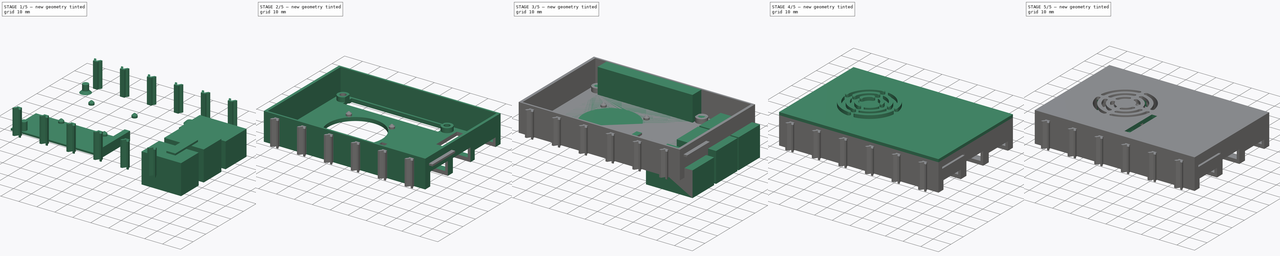
[diagram: build sequence overview — one tinted view per stage of 5, left to right]
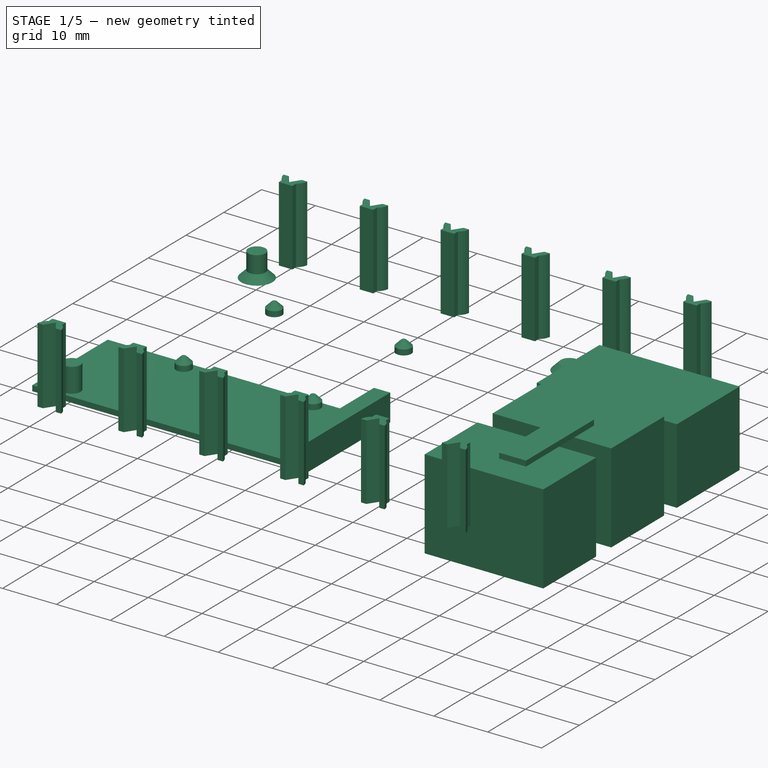
[diagram: stage 1 of 5 — iso view after this stage's code; geometry added in this stage tinted green]
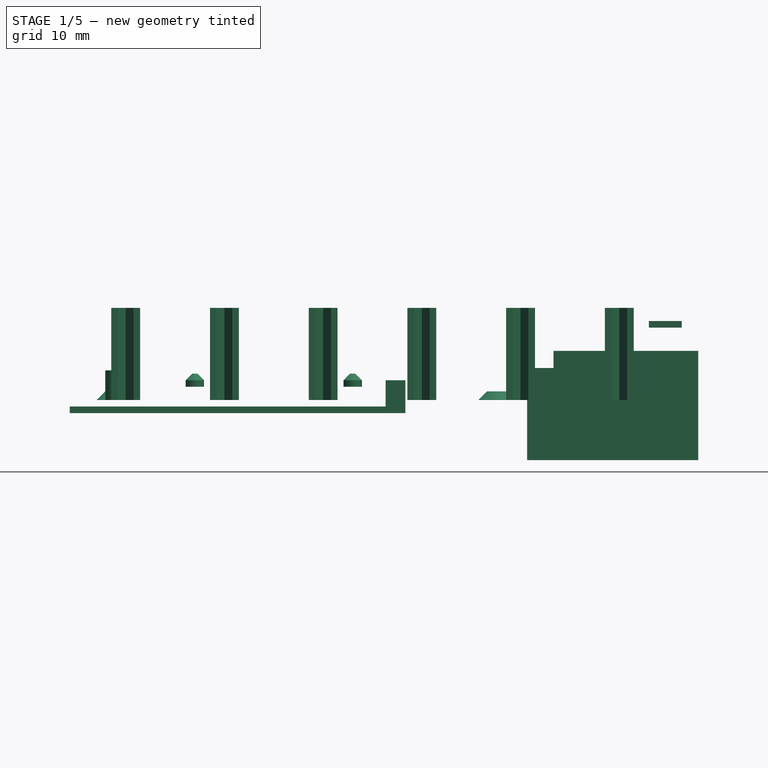
[diagram: stage 1 of 5 — front view after this stage's code; geometry added in this stage tinted green]
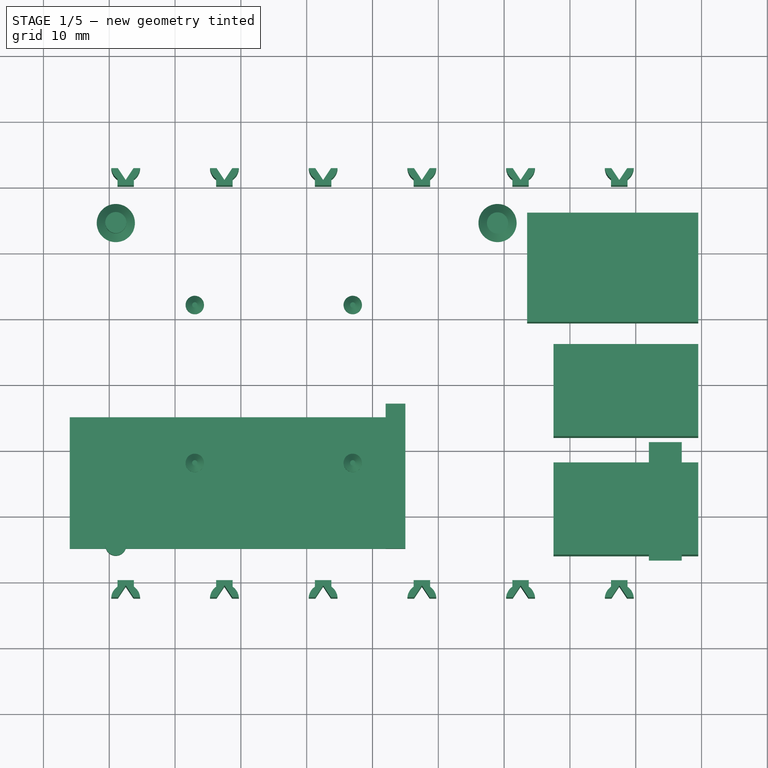
[diagram: stage 1 of 5 — top view after this stage's code; geometry added in this stage tinted green]
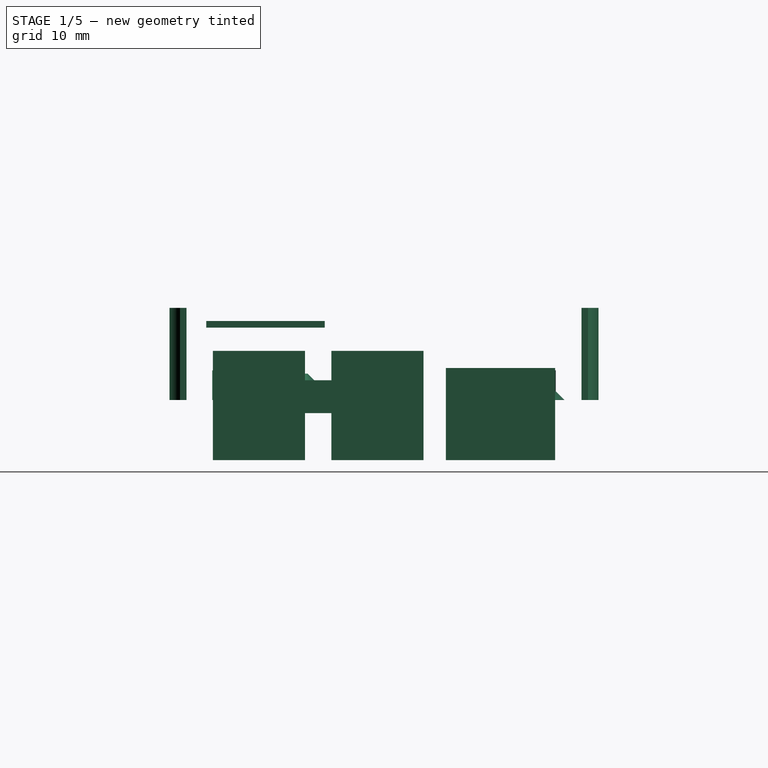
[diagram: stage 1 of 5 — right view after this stage's code; geometry added in this stage tinted green]
FCSTD DOCUMENT  (FreeCAD 0.19RUnknown)
Label: TX-Pi_CoolerHAT
License: All rights reserved
LicenseURL: http://en.wikipedia.org/wiki/All_rights_reserved
objects: Part::MultiFuse×62, Part::Cylinder×55, Part::Box×32, Sketcher::SketchObject×24, Part::Extrusion×24, Part::Cut×21, Part::Chamfer×19, Part::Fillet×1
note: 238 computed .brp shape members not serialized (recipe doc carries the construction recipe); baked Part::Feature solids carry a one-line shape summary decoded from their .brp

FEATURE [Sketcher::SketchObject] Sketch016
  MapMode = 5
  Placement = pos=(0,0,0) rot=(1,0,0;3.14159rad)
  sketch-geometry (13):
    g0: GeomPoint [constr] X=-37.5 Y=30 Z=0
    g1: LineSegment StartX=-38.75 StartY=30 StartZ=0 EndX=-36.25 EndY=30 EndZ=0
    g2: LineSegment StartX=-38.75 StartY=30 StartZ=0 EndX=-38.75 EndY=31 EndZ=0
    g3: LineSegment StartX=-36.25 StartY=30 StartZ=0 EndX=-36.25 EndY=31 EndZ=0
    g4: LineSegment [constr] StartX=-38.75 StartY=31 StartZ=0 EndX=-36.25 EndY=31 EndZ=0
    g5: ArcOfCircle CenterX=-37.5 CenterY=32.8104 CenterZ=0 NormalX=0 NormalY=0 NormalZ=1 AngleXU=0 Radius=2.2 StartAngle=3.23737 EndAngle=4.10809
    g6: ArcOfCircle CenterX=-37.5 CenterY=32.8104 CenterZ=0 NormalX=0 NormalY=0 NormalZ=1 AngleXU=0 Radius=2.2 StartAngle=5.31668 EndAngle=6.18741
    g7: LineSegment StartX=-39.6899 StartY=32.6 StartZ=0 EndX=-38.6899 EndY=32.6 EndZ=0
    g8: LineSegment StartX=-35.3101 StartY=32.6 StartZ=0 EndX=-36.3101 EndY=32.6 EndZ=0
    g9: LineSegment [constr] StartX=-38.6899 StartY=32.6 StartZ=0 EndX=-36.3101 EndY=32.6 EndZ=0
    g10: LineSegment StartX=-38.6899 StartY=32.6 StartZ=0 EndX=-37.5 EndY=30.8104 EndZ=0
    g11: LineSegment StartX=-37.5 StartY=30.8104 StartZ=0 EndX=-36.3101 EndY=32.6 EndZ=0
    g12: LineSegment [constr] StartX=-37.5 StartY=32.8104 StartZ=0 EndX=-37.5 EndY=30.8104 EndZ=0
  constraints (33):
    c: DistanceX(g0,g-1) = 37.5
    c: Symmetric(g1,g1,g0)
    c: DistanceX(g1,g1) = 2.5
    c: Vertical(g2)
    c: Vertical(g3)
    c: Coincident(g4,g2)
    c: Coincident(g4,g3)
    c: Coincident(g2,g1)
    c: Coincident(g1,g3)
    c: DistanceY(g1,g3) = 1
    c: Horizontal(g4)
    c: Coincident(g5,g2)
    c: Coincident(g6,g3)
    c: Radius(g5) = 2.2
    c: Equal(g5,g6)
    c: Coincident(g7,g5)
    c: Horizontal(g7)
    c: Coincident(g8,g6)
    c: Horizontal(g8)
    c: DistanceY(g1,g6) = 2.6
    c: DistanceX(g5,g7) = 1
    c: DistanceX(g8,g6) = 1
    c: Coincident(g9,g7)
    c: Coincident(g9,g8)
    c: Horizontal(g9)
    c: Coincident(g6,g5)
    c: Coincident(g10,g7)
    c: Coincident(g11,g8)
    c: Coincident(g10,g11)
    c: Coincident(g12,g5)
    c: Coincident(g12,g10)
    c: Vertical(g12)
    c: DistanceY(g10,g5) = 2
FEATURE [Sketcher::SketchObject] Sketch013
  MapMode = 5
  Placement = pos=(0,0,0) rot=(1,0,0;3.14159rad)
  sketch-geometry (13):
    g0: GeomPoint [constr] X=-37.5 Y=30 Z=0
    g1: LineSegment StartX=-38.75 StartY=30 StartZ=0 EndX=-36.25 EndY=30 EndZ=0
    g2: LineSegment StartX=-38.75 StartY=30 StartZ=0 EndX=-38.75 EndY=31 EndZ=0
    g3: LineSegment StartX=-36.25 StartY=30 StartZ=0 EndX=-36.25 EndY=31 EndZ=0
    g4: LineSegment [constr] StartX=-38.75 StartY=31 StartZ=0 EndX=-36.25 EndY=31 EndZ=0
    g5: ArcOfCircle CenterX=-37.5 CenterY=32.8104 CenterZ=0 NormalX=0 NormalY=0 NormalZ=1 AngleXU=0 Radius=2.2 StartAngle=3.23737 EndAngle=4.10809
    g6: ArcOfCircle CenterX=-37.5 CenterY=32.8104 CenterZ=0 NormalX=0 NormalY=0 NormalZ=1 AngleXU=0 Radius=2.2 StartAngle=5.31668 EndAngle=6.18741
    g7: LineSegment StartX=-39.6899 StartY=32.6 StartZ=0 EndX=-38.6899 EndY=32.6 EndZ=0
    g8: LineSegment StartX=-35.3101 StartY=32.6 StartZ=0 EndX=-36.3101 EndY=32.6 EndZ=0
    g9: LineSegment [constr] StartX=-38.6899 StartY=32.6 StartZ=0 EndX=-36.3101 EndY=32.6 EndZ=0
    g10: LineSegment StartX=-38.6899 StartY=32.6 StartZ=0 EndX=-37.5 EndY=30.8104 EndZ=0
    g11: LineSegment StartX=-37.5 StartY=30.8104 StartZ=0 EndX=-36.3101 EndY=32.6 EndZ=0
    g12: LineSegment [constr] StartX=-37.5 StartY=32.8104 StartZ=0 EndX=-37.5 EndY=30.8104 EndZ=0
  constraints (33):
    c: DistanceX(g0,g-1) = 37.5
    c: Symmetric(g1,g1,g0)
    c: DistanceX(g1,g1) = 2.5
    c: Vertical(g2)
    c: Vertical(g3)
    c: Coincident(g4,g2)
    c: Coincident(g4,g3)
    c: Coincident(g2,g1)
    c: Coincident(g1,g3)
    c: DistanceY(g1,g3) = 1
    c: Horizontal(g4)
    c: Coincident(g5,g2)
    c: Coincident(g6,g3)
    c: Radius(g5) = 2.2
    c: Equal(g5,g6)
    c: Coincident(g7,g5)
    c: Horizontal(g7)
    c: Coincident(g8,g6)
    c: Horizontal(g8)
    c: DistanceY(g1,g6) = 2.6
    c: DistanceX(g5,g7) = 1
    c: DistanceX(g8,g6) = 1
    c: Coincident(g9,g7)
    c: Coincident(g9,g8)
    c: Horizontal(g9)
    c: Coincident(g6,g5)
    c: Coincident(g10,g7)
    c: Coincident(g11,g8)
    c: Coincident(g10,g11)
    c: Coincident(g12,g5)
    c: Coincident(g12,g10)
    c: Vertical(g12)
    c: DistanceY(g10,g5) = 2
FEATURE [Sketcher::SketchObject] Sketch012
  MapMode = 5
  Placement = pos=(0,0,0) rot=(1,0,0;3.14159rad)
  sketch-geometry (13):
    g0: GeomPoint [constr] X=-37.5 Y=30 Z=0
    g1: LineSegment StartX=-38.75 StartY=30 StartZ=0 EndX=-36.25 EndY=30 EndZ=0
    g2: LineSegment StartX=-38.75 StartY=30 StartZ=0 EndX=-38.75 EndY=31 EndZ=0
    g3: LineSegment StartX=-36.25 StartY=30 StartZ=0 EndX=-36.25 EndY=31 EndZ=0
    g4: LineSegment [constr] StartX=-38.75 StartY=31 StartZ=0 EndX=-36.25 EndY=31 EndZ=0
    g5: ArcOfCircle CenterX=-37.5 CenterY=32.8104 CenterZ=0 NormalX=0 NormalY=0 NormalZ=1 AngleXU=0 Radius=2.2 StartAngle=3.23737 EndAngle=4.10809
    g6: ArcOfCircle CenterX=-37.5 CenterY=32.8104 CenterZ=0 NormalX=0 NormalY=0 NormalZ=1 AngleXU=0 Radius=2.2 StartAngle=5.31668 EndAngle=6.18741
    g7: LineSegment StartX=-39.6899 StartY=32.6 StartZ=0 EndX=-38.6899 EndY=32.6 EndZ=0
    g8: LineSegment StartX=-35.3101 StartY=32.6 StartZ=0 EndX=-36.3101 EndY=32.6 EndZ=0
    g9: LineSegment [constr] StartX=-38.6899 StartY=32.6 StartZ=0 EndX=-36.3101 EndY=32.6 EndZ=0
    g10: LineSegment StartX=-38.6899 StartY=32.6 StartZ=0 EndX=-37.5 EndY=30.8104 EndZ=0
    g11: LineSegment StartX=-37.5 StartY=30.8104 StartZ=0 EndX=-36.3101 EndY=32.6 EndZ=0
    g12: LineSegment [constr] StartX=-37.5 StartY=32.8104 StartZ=0 EndX=-37.5 EndY=30.8104 EndZ=0
  constraints (33):
    c: DistanceX(g0,g-1) = 37.5
    c: Symmetric(g1,g1,g0)
    c: DistanceX(g1,g1) = 2.5
    c: Vertical(g2)
    c: Vertical(g3)
    c: Coincident(g4,g2)
    c: Coincident(g4,g3)
    c: Coincident(g2,g1)
    c: Coincident(g1,g3)
    c: DistanceY(g1,g3) = 1
    c: Horizontal(g4)
    c: Coincident(g5,g2)
    c: Coincident(g6,g3)
    c: Radius(g5) = 2.2
    c: Equal(g5,g6)
    c: Coincident(g7,g5)
    c: Horizontal(g7)
    c: Coincident(g8,g6)
    c: Horizontal(g8)
    c: DistanceY(g1,g6) = 2.6
    c: DistanceX(g5,g7) = 1
    c: DistanceX(g8,g6) = 1
    c: Coincident(g9,g7)
    c: Coincident(g9,g8)
    c: Horizontal(g9)
    c: Coincident(g6,g5)
    c: Coincident(g10,g7)
    c: Coincident(g11,g8)
    c: Coincident(g10,g11)
    c: Coincident(g12,g5)
    c: Coincident(g12,g10)
    c: Vertical(g12)
    c: DistanceY(g10,g5) = 2
FEATURE [Sketcher::SketchObject] Sketch011
  MapMode = 5
  Placement = pos=(0,0,0) rot=(1,0,0;3.14159rad)
  sketch-geometry (13):
    g0: GeomPoint [constr] X=-37.5 Y=30 Z=0
    g1: LineSegment StartX=-38.75 StartY=30 StartZ=0 EndX=-36.25 EndY=30 EndZ=0
    g2: LineSegment StartX=-38.75 StartY=30 StartZ=0 EndX=-38.75 EndY=31 EndZ=0
    g3: LineSegment StartX=-36.25 StartY=30 StartZ=0 EndX=-36.25 EndY=31 EndZ=0
    g4: LineSegment [constr] StartX=-38.75 StartY=31 StartZ=0 EndX=-36.25 EndY=31 EndZ=0
    g5: ArcOfCircle CenterX=-37.5 CenterY=32.8104 CenterZ=0 NormalX=0 NormalY=0 NormalZ=1 AngleXU=0 Radius=2.2 StartAngle=3.23737 EndAngle=4.10809
    g6: ArcOfCircle CenterX=-37.5 CenterY=32.8104 CenterZ=0 NormalX=0 NormalY=0 NormalZ=1 AngleXU=0 Radius=2.2 StartAngle=5.31668 EndAngle=6.18741
    g7: LineSegment StartX=-39.6899 StartY=32.6 StartZ=0 EndX=-38.6899 EndY=32.6 EndZ=0
    g8: LineSegment StartX=-35.3101 StartY=32.6 StartZ=0 EndX=-36.3101 EndY=32.6 EndZ=0
    g9: LineSegment [constr] StartX=-38.6899 StartY=32.6 StartZ=0 EndX=-36.3101 EndY=32.6 EndZ=0
    g10: LineSegment StartX=-38.6899 StartY=32.6 StartZ=0 EndX=-37.5 EndY=30.8104 EndZ=0
    g11: LineSegment StartX=-37.5 StartY=30.8104 StartZ=0 EndX=-36.3101 EndY=32.6 EndZ=0
    g12: LineSegment [constr] StartX=-37.5 StartY=32.8104 StartZ=0 EndX=-37.5 EndY=30.8104 EndZ=0
  constraints (33):
    c: DistanceX(g0,g-1) = 37.5
    c: Symmetric(g1,g1,g0)
    c: DistanceX(g1,g1) = 2.5
    c: Vertical(g2)
    c: Vertical(g3)
    c: Coincident(g4,g2)
    c: Coincident(g4,g3)
    c: Coincident(g2,g1)
    c: Coincident(g1,g3)
    c: DistanceY(g1,g3) = 1
    c: Horizontal(g4)
    c: Coincident(g5,g2)
    c: Coincident(g6,g3)
    c: Radius(g5) = 2.2
    c: Equal(g5,g6)
    c: Coincident(g7,g5)
    c: Horizontal(g7)
    c: Coincident(g8,g6)
    c: Horizontal(g8)
    c: DistanceY(g1,g6) = 2.6
    c: DistanceX(g5,g7) = 1
    c: DistanceX(g8,g6) = 1
    c: Coincident(g9,g7)
    c: Coincident(g9,g8)
    c: Horizontal(g9)
    c: Coincident(g6,g5)
    c: Coincident(g10,g7)
    c: Coincident(g11,g8)
    c: Coincident(g10,g11)
    c: Coincident(g12,g5)
    c: Coincident(g12,g10)
    c: Vertical(g12)
    c: DistanceY(g10,g5) = 2
FEATURE [Sketcher::SketchObject] Sketch007
  MapMode = 5
  Placement = pos=(0,0,0) rot=(1,0,0;3.14159rad)
  sketch-geometry (13):
    g0: GeomPoint [constr] X=-37.5 Y=30 Z=0
    g1: LineSegment StartX=-38.75 StartY=30 StartZ=0 EndX=-36.25 EndY=30 EndZ=0
    g2: LineSegment StartX=-38.75 StartY=30 StartZ=0 EndX=-38.75 EndY=31 EndZ=0
    g3: LineSegment StartX=-36.25 StartY=30 StartZ=0 EndX=-36.25 EndY=31 EndZ=0
    g4: LineSegment [constr] StartX=-38.75 StartY=31 StartZ=0 EndX=-36.25 EndY=31 EndZ=0
    g5: ArcOfCircle CenterX=-37.5 CenterY=32.8104 CenterZ=0 NormalX=0 NormalY=0 NormalZ=1 AngleXU=0 Radius=2.2 StartAngle=3.23737 EndAngle=4.10809
    g6: ArcOfCircle CenterX=-37.5 CenterY=32.8104 CenterZ=0 NormalX=0 NormalY=0 NormalZ=1 AngleXU=0 Radius=2.2 StartAngle=5.31668 EndAngle=6.18741
    g7: LineSegment StartX=-39.6899 StartY=32.6 StartZ=0 EndX=-38.6899 EndY=32.6 EndZ=0
    g8: LineSegment StartX=-35.3101 StartY=32.6 StartZ=0 EndX=-36.3101 EndY=32.6 EndZ=0
    g9: LineSegment [constr] StartX=-38.6899 StartY=32.6 StartZ=0 EndX=-36.3101 EndY=32.6 EndZ=0
    g10: LineSegment StartX=-38.6899 StartY=32.6 StartZ=0 EndX=-37.5 EndY=30.8104 EndZ=0
    g11: LineSegment StartX=-37.5 StartY=30.8104 StartZ=0 EndX=-36.3101 EndY=32.6 EndZ=0
    g12: LineSegment [constr] StartX=-37.5 StartY=32.8104 StartZ=0 EndX=-37.5 EndY=30.8104 EndZ=0
  constraints (33):
    c: DistanceX(g0,g-1) = 37.5
    c: Symmetric(g1,g1,g0)
    c: DistanceX(g1,g1) = 2.5
    c: Vertical(g2)
    c: Vertical(g3)
    c: Coincident(g4,g2)
    c: Coincident(g4,g3)
    c: Coincident(g2,g1)
    c: Coincident(g1,g3)
    c: DistanceY(g1,g3) = 1
    c: Horizontal(g4)
    c: Coincident(g5,g2)
    c: Coincident(g6,g3)
    c: Radius(g5) = 2.2
    c: Equal(g5,g6)
    c: Coincident(g7,g5)
    c: Horizontal(g7)
    c: Coincident(g8,g6)
    c: Horizontal(g8)
    c: DistanceY(g1,g6) = 2.6
    c: DistanceX(g5,g7) = 1
    c: DistanceX(g8,g6) = 1
    c: Coincident(g9,g7)
    c: Coincident(g9,g8)
    c: Horizontal(g9)
    c: Coincident(g6,g5)
    c: Coincident(g10,g7)
    c: Coincident(g11,g8)
    c: Coincident(g10,g11)
    c: Coincident(g12,g5)
    c: Coincident(g12,g10)
    c: Vertical(g12)
    c: DistanceY(g10,g5) = 2
FEATURE [Part::Extrusion] Extrude009
  Base = -> Sketch007
  Dir = (0,0,1)
  DirMode = 0
  FaceMakerClass = Part::FaceMakerBullseye
  LengthFwd = 14
  LengthRev = 0
  Solid = true
  Symmetric = false
FEATURE [Part::Extrusion] Extrude010
  Base = -> Sketch011
  Dir = (0,0,1)
  DirMode = 0
  FaceMakerClass = Part::FaceMakerBullseye
  LengthFwd = 14
  LengthRev = 0
  Placement = pos=(60,0,0) rot=(0,0,1;0rad)
  Solid = true
  Symmetric = false
FEATURE [Part::Extrusion] Extrude012
  Base = -> Sketch013
  Dir = (0,0,1)
  DirMode = 0
  FaceMakerClass = Part::FaceMakerBullseye
  LengthFwd = 14
  LengthRev = 0
  Placement = pos=(0,0,0) rot=(0,0,1;3.14159rad)
  Solid = true
  Symmetric = false
FEATURE [Part::Extrusion] Extrude013
  Base = -> Sketch016
  Dir = (0,0,1)
  DirMode = 0
  FaceMakerClass = Part::FaceMakerBullseye
  LengthFwd = 14
  LengthRev = 0
  Placement = pos=(-75,0,0) rot=(0,0,1;3.14159rad)
  Solid = true
  Symmetric = false
FEATURE [Part::Cylinder] Cylinder028  label="Zylinder027"
  Angle = 360
  AttacherType = Attacher::AttachEngine3D
  Height = 4.5
  Placement = pos=(-39,24.5,0) rot=(0,0,1;0rad)
  Radius = 1.6
FEATURE [Sketcher::SketchObject] Sketch018
  MapMode = 5
  Placement = pos=(0,0,0) rot=(1,0,0;3.14159rad)
  sketch-geometry (13):
    g0: GeomPoint [constr] X=-37.5 Y=30 Z=0
    g1: LineSegment StartX=-38.75 StartY=30 StartZ=0 EndX=-36.25 EndY=30 EndZ=0
    g2: LineSegment StartX=-38.75 StartY=30 StartZ=0 EndX=-38.75 EndY=31 EndZ=0
    g3: LineSegment StartX=-36.25 StartY=30 StartZ=0 EndX=-36.25 EndY=31 EndZ=0
    g4: LineSegment [constr] StartX=-38.75 StartY=31 StartZ=0 EndX=-36.25 EndY=31 EndZ=0
    g5: ArcOfCircle CenterX=-37.5 CenterY=32.8104 CenterZ=0 NormalX=0 NormalY=0 NormalZ=1 AngleXU=0 Radius=2.2 StartAngle=3.23737 EndAngle=4.10809
    g6: ArcOfCircle CenterX=-37.5 CenterY=32.8104 CenterZ=0 NormalX=0 NormalY=0 NormalZ=1 AngleXU=0 Radius=2.2 StartAngle=5.31668 EndAngle=6.18741
    g7: LineSegment StartX=-39.6899 StartY=32.6 StartZ=0 EndX=-38.6899 EndY=32.6 EndZ=0
    g8: LineSegment StartX=-35.3101 StartY=32.6 StartZ=0 EndX=-36.3101 EndY=32.6 EndZ=0
    g9: LineSegment [constr] StartX=-38.6899 StartY=32.6 StartZ=0 EndX=-36.3101 EndY=32.6 EndZ=0
    g10: LineSegment StartX=-38.6899 StartY=32.6 StartZ=0 EndX=-37.5 EndY=30.8104 EndZ=0
    g11: LineSegment StartX=-37.5 StartY=30.8104 StartZ=0 EndX=-36.3101 EndY=32.6 EndZ=0
    g12: LineSegment [constr] StartX=-37.5 StartY=32.8104 StartZ=0 EndX=-37.5 EndY=30.8104 EndZ=0
  constraints (33):
    c: DistanceX(g0,g-1) = 37.5
    c: Symmetric(g1,g1,g0)
    c: DistanceX(g1,g1) = 2.5
    c: Vertical(g2)
    c: Vertical(g3)
    c: Coincident(g4,g2)
    c: Coincident(g4,g3)
    c: Coincident(g2,g1)
    c: Coincident(g1,g3)
    c: DistanceY(g1,g3) = 1
    c: Horizontal(g4)
    c: Coincident(g5,g2)
    c: Coincident(g6,g3)
    c: Radius(g5) = 2.2
    c: Equal(g5,g6)
    c: Coincident(g7,g5)
    c: Horizontal(g7)
    c: Coincident(g8,g6)
    c: Horizontal(g8)
    c: DistanceY(g1,g6) = 2.6
    c: DistanceX(g5,g7) = 1
    c: DistanceX(g8,g6) = 1
    c: Coincident(g9,g7)
    c: Coincident(g9,g8)
    c: Horizontal(g9)
    c: Coincident(g6,g5)
    c: Coincident(g10,g7)
    c: Coincident(g11,g8)
    c: Coincident(g10,g11)
    c: Coincident(g12,g5)
    c: Coincident(g12,g10)
    c: Vertical(g12)
    c: DistanceY(g10,g5) = 2
FEATURE [Part::Extrusion] Extrude008
  Base = -> Sketch018
  Dir = (0,0,1)
  DirMode = 0
  FaceMakerClass = Part::FaceMakerBullseye
  LengthFwd = 14
  LengthRev = 0
  Placement = pos=(-30,0,0) rot=(0,0,1;3.14159rad)
  Solid = true
  Symmetric = false
FEATURE [Part::Box] Box044  label="Würfel031"
  AttacherType = Attacher::AttachEngine3D
  Height = 5
  Length = 3
  Placement = pos=(-5,-27,-1) rot=(0,0,1;0rad)
  Width = 22
FEATURE [Part::Box] Box045  label="Würfel032"
  AttacherType = Attacher::AttachEngine3D
  Height = 1
  Length = 51
  Placement = pos=(-5,-25,-1) rot=(0,0,1;0rad)
  Width = 20
FEATURE [Part::MultiFuse] Fusion045  label="wire channel"
  Placement = pos=(0,-30,-1) rot=(0,0,1;3.14159rad)
  Shapes = -> [Box045,Box044]
FEATURE [Part::Cylinder] Cylinder030  label="Zylinder029"
  Angle = 360
  AttacherType = Attacher::AttachEngine3D
  Height = 4.5
  Placement = pos=(-39,-24.5,0) rot=(0,0,1;0rad)
  Radius = 1.6
FEATURE [Part::Cylinder] Cylinder032  label="Zylinder031"
  Angle = 360
  AttacherType = Attacher::AttachEngine3D
  Height = 1.3
  Radius = 2.9
FEATURE [Part::Chamfer] Chamfer001  label="Ansenkung 4"
  Base = -> Cylinder032
  Edges = 1 edges r=1.29: [Edge1]
  Placement = pos=(-39,24.5,0) rot=(0,0,1;0rad)
FEATURE [Part::Extrusion] Extrude015
  Base = -> Sketch012
  Dir = (0,0,1)
  DirMode = 0
  FaceMakerClass = Part::FaceMakerBullseye
  LengthFwd = 14
  LengthRev = 0
  Placement = pos=(75,0,0) rot=(0,0,1;0rad)
  Solid = true
  Symmetric = false
FEATURE [Sketcher::SketchObject] Sketch015
  MapMode = 5
  Placement = pos=(0,0,0) rot=(1,0,0;3.14159rad)
  sketch-geometry (13):
    g0: GeomPoint [constr] X=-37.5 Y=30 Z=0
    g1: LineSegment StartX=-38.75 StartY=30 StartZ=0 EndX=-36.25 EndY=30 EndZ=0
    g2: LineSegment StartX=-38.75 StartY=30 StartZ=0 EndX=-38.75 EndY=31 EndZ=0
    g3: LineSegment StartX=-36.25 StartY=30 StartZ=0 EndX=-36.25 EndY=31 EndZ=0
    g4: LineSegment [constr] StartX=-38.75 StartY=31 StartZ=0 EndX=-36.25 EndY=31 EndZ=0
    g5: ArcOfCircle CenterX=-37.5 CenterY=32.8104 CenterZ=0 NormalX=0 NormalY=0 NormalZ=1 AngleXU=0 Radius=2.2 StartAngle=3.23737 EndAngle=4.10809
    g6: ArcOfCircle CenterX=-37.5 CenterY=32.8104 CenterZ=0 NormalX=0 NormalY=0 NormalZ=1 AngleXU=0 Radius=2.2 StartAngle=5.31668 EndAngle=6.18741
    g7: LineSegment StartX=-39.6899 StartY=32.6 StartZ=0 EndX=-38.6899 EndY=32.6 EndZ=0
    g8: LineSegment StartX=-35.3101 StartY=32.6 StartZ=0 EndX=-36.3101 EndY=32.6 EndZ=0
    g9: LineSegment [constr] StartX=-38.6899 StartY=32.6 StartZ=0 EndX=-36.3101 EndY=32.6 EndZ=0
    g10: LineSegment StartX=-38.6899 StartY=32.6 StartZ=0 EndX=-37.5 EndY=30.8104 EndZ=0
    g11: LineSegment StartX=-37.5 StartY=30.8104 StartZ=0 EndX=-36.3101 EndY=32.6 EndZ=0
    g12: LineSegment [constr] StartX=-37.5 StartY=32.8104 StartZ=0 EndX=-37.5 EndY=30.8104 EndZ=0
  constraints (33):
    c: DistanceX(g0,g-1) = 37.5
    c: Symmetric(g1,g1,g0)
    c: DistanceX(g1,g1) = 2.5
    c: Vertical(g2)
    c: Vertical(g3)
    c: Coincident(g4,g2)
    c: Coincident(g4,g3)
    c: Coincident(g2,g1)
    c: Coincident(g1,g3)
    c: DistanceY(g1,g3) = 1
    c: Horizontal(g4)
    c: Coincident(g5,g2)
    c: Coincident(g6,g3)
    c: Radius(g5) = 2.2
    c: Equal(g5,g6)
    c: Coincident(g7,g5)
    c: Horizontal(g7)
    c: Coincident(g8,g6)
    c: Horizontal(g8)
    c: DistanceY(g1,g6) = 2.6
    c: DistanceX(g5,g7) = 1
    c: DistanceX(g8,g6) = 1
    c: Coincident(g9,g7)
    c: Coincident(g9,g8)
    c: Horizontal(g9)
    c: Coincident(g6,g5)
    c: Coincident(g10,g7)
    c: Coincident(g11,g8)
    c: Coincident(g10,g11)
    c: Coincident(g12,g5)
    c: Coincident(g12,g10)
    c: Vertical(g12)
    c: DistanceY(g10,g5) = 2
FEATURE [Part::Extrusion] Extrude014
  Base = -> Sketch015
  Dir = (0,0,1)
  DirMode = 0
  FaceMakerClass = Part::FaceMakerBullseye
  LengthFwd = 14
  LengthRev = 0
  Placement = pos=(-60,0,0) rot=(0,0,1;3.14159rad)
  Solid = true
  Symmetric = false
FEATURE [Part::Cylinder] Cylinder035  label="Zylinder034"
  Angle = 360
  AttacherType = Attacher::AttachEngine3D
  Height = 4.5
  Placement = pos=(-39,-24.5,0) rot=(0,0,1;0rad)
  Radius = 1.6
FEATURE [Part::Extrusion] Extrude016
  Base = -> Sketch017
  Dir = (0,0,1)
  DirMode = 0
  FaceMakerClass = Part::FaceMakerBullseye
  LengthFwd = 14
  LengthRev = 0
  Placement = pos=(-45,0,0) rot=(0,0,1;3.14159rad)
  Solid = true
  Symmetric = false
FEATURE [Sketcher::SketchObject] Sketch014
  MapMode = 5
  Placement = pos=(0,0,0) rot=(1,0,0;3.14159rad)
  sketch-geometry (13):
    g0: GeomPoint [constr] X=-37.5 Y=30 Z=0
    g1: LineSegment StartX=-38.75 StartY=30 StartZ=0 EndX=-36.25 EndY=30 EndZ=0
    g2: LineSegment StartX=-38.75 StartY=30 StartZ=0 EndX=-38.75 EndY=31 EndZ=0
    g3: LineSegment StartX=-36.25 StartY=30 StartZ=0 EndX=-36.25 EndY=31 EndZ=0
    g4: LineSegment [constr] StartX=-38.75 StartY=31 StartZ=0 EndX=-36.25 EndY=31 EndZ=0
    g5: ArcOfCircle CenterX=-37.5 CenterY=32.8104 CenterZ=0 NormalX=0 NormalY=0 NormalZ=1 AngleXU=0 Radius=2.2 StartAngle=3.23737 EndAngle=4.10809
    g6: ArcOfCircle CenterX=-37.5 CenterY=32.8104 CenterZ=0 NormalX=0 NormalY=0 NormalZ=1 AngleXU=0 Radius=2.2 StartAngle=5.31668 EndAngle=6.18741
    g7: LineSegment StartX=-39.6899 StartY=32.6 StartZ=0 EndX=-38.6899 EndY=32.6 EndZ=0
    g8: LineSegment StartX=-35.3101 StartY=32.6 StartZ=0 EndX=-36.3101 EndY=32.6 EndZ=0
    g9: LineSegment [constr] StartX=-38.6899 StartY=32.6 StartZ=0 EndX=-36.3101 EndY=32.6 EndZ=0
    g10: LineSegment StartX=-38.6899 StartY=32.6 StartZ=0 EndX=-37.5 EndY=30.8104 EndZ=0
    g11: LineSegment StartX=-37.5 StartY=30.8104 StartZ=0 EndX=-36.3101 EndY=32.6 EndZ=0
    g12: LineSegment [constr] StartX=-37.5 StartY=32.8104 StartZ=0 EndX=-37.5 EndY=30.8104 EndZ=0
  constraints (33):
    c: DistanceX(g0,g-1) = 37.5
    c: Symmetric(g1,g1,g0)
    c: DistanceX(g1,g1) = 2.5
    c: Vertical(g2)
    c: Vertical(g3)
    c: Coincident(g4,g2)
    c: Coincident(g4,g3)
    c: Coincident(g2,g1)
    c: Coincident(g1,g3)
    c: DistanceY(g1,g3) = 1
    c: Horizontal(g4)
    c: Coincident(g5,g2)
    c: Coincident(g6,g3)
    c: Radius(g5) = 2.2
    c: Equal(g5,g6)
    c: Coincident(g7,g5)
    c: Horizontal(g7)
    c: Coincident(g8,g6)
    c: Horizontal(g8)
    c: DistanceY(g1,g6) = 2.6
    c: DistanceX(g5,g7) = 1
    c: DistanceX(g8,g6) = 1
    c: Coincident(g9,g7)
    c: Coincident(g9,g8)
    c: Horizontal(g9)
    c: Coincident(g6,g5)
    c: Coincident(g10,g7)
    c: Coincident(g11,g8)
    c: Coincident(g10,g11)
    c: Coincident(g12,g5)
    c: Coincident(g12,g10)
    c: Vertical(g12)
    c: DistanceY(g10,g5) = 2
FEATURE [Part::Extrusion] Extrude011
  Base = -> Sketch014
  Dir = (0,0,1)
  DirMode = 0
  FaceMakerClass = Part::FaceMakerBullseye
  LengthFwd = 14
  LengthRev = 0
  Placement = pos=(-15,0,0) rot=(0,0,1;3.14159rad)
  Solid = true
  Symmetric = false
FEATURE [Part::MultiFuse] Fusion044  label="Wannenfedern"
  Shapes = -> [Extrude009,Extrude010,Extrude015,Extrude011,Extrude012,Extrude008,Extrude014,Extrude016,Extrude013]
FEATURE [Part::Box] Box056  label="Network001"
  AttacherType = Attacher::AttachEngine3D
  Height = 14
  Length = 26
  Placement = pos=(23.5,9.4,4.8) rot=(0,0,1;0rad)
  Width = 16.6
FEATURE [Part::Box] Box057  label="USB003"
  AttacherType = Attacher::AttachEngine3D
  Height = 16.6
  Length = 22
  Placement = pos=(27.5,-8,4.8) rot=(0,0,1;0rad)
  Width = 14
FEATURE [Part::Box] Box058  label="USB004"
  AttacherType = Attacher::AttachEngine3D
  Height = 16.6
  Length = 22
  Placement = pos=(27.5,-26,4.8) rot=(0,0,1;0rad)
  Width = 14
FEATURE [Part::MultiFuse] Fusion056  label="Rear USB & Network slots"
  Placement = pos=(0,0,-13.95) rot=(0,0,1;0rad)
  Shapes = -> [Box056,Box057,Box058]
FEATURE [Part::Cylinder] Cylinder036  label="Zylinder035"
  Angle = 360
  AttacherType = Attacher::AttachEngine3D
  Height = 1.3
  Radius = 2.9
FEATURE [Part::Chamfer] Chamfer005  label="Ansenkung 3"
  Base = -> Cylinder036
  Edges = 1 edges r=1.29: [Edge1]
  Placement = pos=(19,24.5,0) rot=(0,0,1;0rad)
FEATURE [Part::MultiFuse] Fusion060  label="Ansenkungen Exp-Wanne"
  Shapes = -> [Chamfer001,Chamfer005]
FEATURE [Part::MultiFuse] Fusion071
  Shapes = -> [Fusion045,Fusion056,Fusion060]
FEATURE [Part::Cylinder] Cylinder048  label="Zylinder047"
  Angle = 360
  AttacherType = Attacher::AttachEngine3D
  Height = 2
  Placement = pos=(-3,12,2) rot=(0,0,1;0rad)
  Radius = 1.4
FEATURE [Part::Chamfer] Chamfer
  Base = -> Cylinder048
  Edges = 1 edges r=1: [Edge1]
FEATURE [Part::Cylinder] Cylinder049  label="Zylinder048"
  Angle = 360
  AttacherType = Attacher::AttachEngine3D
  Height = 2
  Placement = pos=(-3,12,2) rot=(0,0,1;0rad)
  Radius = 1.4
FEATURE [Part::Chamfer] Chamfer008
  Base = -> Cylinder049
  Edges = 1 edges r=1: [Edge1]
  Placement = pos=(0,-24,0) rot=(0,0,1;0rad)
FEATURE [Part::MultiFuse] Fusion072
  Shapes = -> [Chamfer008,Chamfer]
FEATURE [Part::Cylinder] Cylinder050  label="Zylinder049"
  Angle = 360
  AttacherType = Attacher::AttachEngine3D
  Height = 2
  Placement = pos=(-3,12,2) rot=(0,0,1;0rad)
  Radius = 1.4
FEATURE [Part::Chamfer] Chamfer009
  Base = -> Cylinder050
  Edges = 1 edges r=1: [Edge1]
  Placement = pos=(0,-24,0) rot=(0,0,1;0rad)
FEATURE [Part::Cylinder] Cylinder051  label="Zylinder050"
  Angle = 360
  AttacherType = Attacher::AttachEngine3D
  Height = 2
  Placement = pos=(-3,12,2) rot=(0,0,1;0rad)
  Radius = 1.4
FEATURE [Part::Chamfer] Chamfer010
  Base = -> Cylinder051
  Edges = 1 edges r=1: [Edge1]
FEATURE [Part::MultiFuse] Fusion073
  Placement = pos=(-24,0,0) rot=(0,0,1;0rad)
  Shapes = -> [Chamfer009,Chamfer010]
FEATURE [Part::MultiFuse] Fusion074
  Shapes = -> [Fusion073,Fusion072]
FEATURE [Sketcher::SketchObject] Sketch019
  MapMode = 5
  Placement = pos=(0,0,0) rot=(1,0,0;3.14159rad)
  sketch-geometry (13):
    g0: GeomPoint [constr] X=-37.5 Y=30 Z=0
    g1: LineSegment StartX=-38.75 StartY=30 StartZ=0 EndX=-36.25 EndY=30 EndZ=0
    g2: LineSegment StartX=-38.75 StartY=30 StartZ=0 EndX=-38.75 EndY=31 EndZ=0
    g3: LineSegment StartX=-36.25 StartY=30 StartZ=0 EndX=-36.25 EndY=31 EndZ=0
    g4: LineSegment [constr] StartX=-38.75 StartY=31 StartZ=0 EndX=-36.25 EndY=31 EndZ=0
    g5: ArcOfCircle CenterX=-37.5 CenterY=32.8104 CenterZ=0 NormalX=0 NormalY=0 NormalZ=1 AngleXU=0 Radius=2.2 StartAngle=3.23737 EndAngle=4.10809
    g6: ArcOfCircle CenterX=-37.5 CenterY=32.8104 CenterZ=0 NormalX=0 NormalY=0 NormalZ=1 AngleXU=0 Radius=2.2 StartAngle=5.31668 EndAngle=6.18741
    g7: LineSegment StartX=-39.6899 StartY=32.6 StartZ=0 EndX=-38.6899 EndY=32.6 EndZ=0
    g8: LineSegment StartX=-35.3101 StartY=32.6 StartZ=0 EndX=-36.3101 EndY=32.6 EndZ=0
    g9: LineSegment [constr] StartX=-38.6899 StartY=32.6 StartZ=0 EndX=-36.3101 EndY=32.6 EndZ=0
    g10: LineSegment StartX=-38.6899 StartY=32.6 StartZ=0 EndX=-37.5 EndY=30.8104 EndZ=0
    g11: LineSegment StartX=-37.5 StartY=30.8104 StartZ=0 EndX=-36.3101 EndY=32.6 EndZ=0
    g12: LineSegment [constr] StartX=-37.5 StartY=32.8104 StartZ=0 EndX=-37.5 EndY=30.8104 EndZ=0
  constraints (33):
    c: DistanceX(g0,g-1) = 37.5
    c: Symmetric(g1,g1,g0)
    c: DistanceX(g1,g1) = 2.5
    c: Vertical(g2)
    c: Vertical(g3)
    c: Coincident(g4,g2)
    c: Coincident(g4,g3)
    c: Coincident(g2,g1)
    c: Coincident(g1,g3)
    c: DistanceY(g1,g3) = 1
    c: Horizontal(g4)
    c: Coincident(g5,g2)
    c: Coincident(g6,g3)
    c: Radius(g5) = 2.2
    c: Equal(g5,g6)
    c: Coincident(g7,g5)
    c: Horizontal(g7)
    c: Coincident(g8,g6)
    c: Horizontal(g8)
    c: DistanceY(g1,g6) = 2.6
    c: DistanceX(g5,g7) = 1
    c: DistanceX(g8,g6) = 1
    c: Coincident(g9,g7)
    c: Coincident(g9,g8)
    c: Horizontal(g9)
    c: Coincident(g6,g5)
    c: Coincident(g10,g7)
    c: Coincident(g11,g8)
    c: Coincident(g10,g11)
    c: Coincident(g12,g5)
    c: Coincident(g12,g10)
    c: Vertical(g12)
    c: DistanceY(g10,g5) = 2
FEATURE [Part::Extrusion] Extrude017
  Base = -> Sketch019
  Dir = (0,0,1)
  DirMode = 0
  FaceMakerClass = Part::FaceMakerBullseye
  LengthFwd = 14
  LengthRev = 0
  Placement = pos=(15,0,0) rot=(0,0,1;0rad)
  Solid = true
  Symmetric = false
FEATURE [Sketcher::SketchObject] Sketch020
  MapMode = 5
  Placement = pos=(0,0,0) rot=(1,0,0;3.14159rad)
  sketch-geometry (13):
    g0: GeomPoint [constr] X=-37.5 Y=30 Z=0
    g1: LineSegment StartX=-38.75 StartY=30 StartZ=0 EndX=-36.25 EndY=30 EndZ=0
    g2: LineSegment StartX=-38.75 StartY=30 StartZ=0 EndX=-38.75 EndY=31 EndZ=0
    g3: LineSegment StartX=-36.25 StartY=30 StartZ=0 EndX=-36.25 EndY=31 EndZ=0
    g4: LineSegment [constr] StartX=-38.75 StartY=31 StartZ=0 EndX=-36.25 EndY=31 EndZ=0
    g5: ArcOfCircle CenterX=-37.5 CenterY=32.8104 CenterZ=0 NormalX=0 NormalY=0 NormalZ=1 AngleXU=0 Radius=2.2 StartAngle=3.23737 EndAngle=4.10809
    g6: ArcOfCircle CenterX=-37.5 CenterY=32.8104 CenterZ=0 NormalX=0 NormalY=0 NormalZ=1 AngleXU=0 Radius=2.2 StartAngle=5.31668 EndAngle=6.18741
    g7: LineSegment StartX=-39.6899 StartY=32.6 StartZ=0 EndX=-38.6899 EndY=32.6 EndZ=0
    g8: LineSegment StartX=-35.3101 StartY=32.6 StartZ=0 EndX=-36.3101 EndY=32.6 EndZ=0
    g9: LineSegment [constr] StartX=-38.6899 StartY=32.6 StartZ=0 EndX=-36.3101 EndY=32.6 EndZ=0
    g10: LineSegment StartX=-38.6899 StartY=32.6 StartZ=0 EndX=-37.5 EndY=30.8104 EndZ=0
    g11: LineSegment StartX=-37.5 StartY=30.8104 StartZ=0 EndX=-36.3101 EndY=32.6 EndZ=0
    g12: LineSegment [constr] StartX=-37.5 StartY=32.8104 StartZ=0 EndX=-37.5 EndY=30.8104 EndZ=0
  constraints (33):
    c: DistanceX(g0,g-1) = 37.5
    c: Symmetric(g1,g1,g0)
    c: DistanceX(g1,g1) = 2.5
    c: Vertical(g2)
    c: Vertical(g3)
    c: Coincident(g4,g2)
    c: Coincident(g4,g3)
    c: Coincident(g2,g1)
    c: Coincident(g1,g3)
    c: DistanceY(g1,g3) = 1
    c: Horizontal(g4)
    c: Coincident(g5,g2)
    c: Coincident(g6,g3)
    c: Radius(g5) = 2.2
    c: Equal(g5,g6)
    c: Coincident(g7,g5)
    c: Horizontal(g7)
    c: Coincident(g8,g6)
    c: Horizontal(g8)
    c: DistanceY(g1,g6) = 2.6
    c: DistanceX(g5,g7) = 1
    c: DistanceX(g8,g6) = 1
    c: Coincident(g9,g7)
    c: Coincident(g9,g8)
    c: Horizontal(g9)
    c: Coincident(g6,g5)
    c: Coincident(g10,g7)
    c: Coincident(g11,g8)
    c: Coincident(g10,g11)
    c: Coincident(g12,g5)
    c: Coincident(g12,g10)
    c: Vertical(g12)
    c: DistanceY(g10,g5) = 2
FEATURE [Part::Extrusion] Extrude018
  Base = -> Sketch020
  Dir = (0,0,1)
  DirMode = 0
  FaceMakerClass = Part::FaceMakerBullseye
  LengthFwd = 14
  LengthRev = 0
  Placement = pos=(30,0,0) rot=(0,0,1;0rad)
  Solid = true
  Symmetric = false
FEATURE [Sketcher::SketchObject] Sketch021
  MapMode = 5
  Placement = pos=(0,0,0) rot=(1,0,0;3.14159rad)
  sketch-geometry (13):
    g0: GeomPoint [constr] X=-37.5 Y=30 Z=0
    g1: LineSegment StartX=-38.75 StartY=30 StartZ=0 EndX=-36.25 EndY=30 EndZ=0
    g2: LineSegment StartX=-38.75 StartY=30 StartZ=0 EndX=-38.75 EndY=31 EndZ=0
    g3: LineSegment StartX=-36.25 StartY=30 StartZ=0 EndX=-36.25 EndY=31 EndZ=0
    g4: LineSegment [constr] StartX=-38.75 StartY=31 StartZ=0 EndX=-36.25 EndY=31 EndZ=0
    g5: ArcOfCircle CenterX=-37.5 CenterY=32.8104 CenterZ=0 NormalX=0 NormalY=0 NormalZ=1 AngleXU=0 Radius=2.2 StartAngle=3.23737 EndAngle=4.10809
    g6: ArcOfCircle CenterX=-37.5 CenterY=32.8104 CenterZ=0 NormalX=0 NormalY=0 NormalZ=1 AngleXU=0 Radius=2.2 StartAngle=5.31668 EndAngle=6.18741
    g7: LineSegment StartX=-39.6899 StartY=32.6 StartZ=0 EndX=-38.6899 EndY=32.6 EndZ=0
    g8: LineSegment StartX=-35.3101 StartY=32.6 StartZ=0 EndX=-36.3101 EndY=32.6 EndZ=0
    g9: LineSegment [constr] StartX=-38.6899 StartY=32.6 StartZ=0 EndX=-36.3101 EndY=32.6 EndZ=0
    g10: LineSegment StartX=-38.6899 StartY=32.6 StartZ=0 EndX=-37.5 EndY=30.8104 EndZ=0
    g11: LineSegment StartX=-37.5 StartY=30.8104 StartZ=0 EndX=-36.3101 EndY=32.6 EndZ=0
    g12: LineSegment [constr] StartX=-37.5 StartY=32.8104 StartZ=0 EndX=-37.5 EndY=30.8104 EndZ=0
  constraints (33):
    c: DistanceX(g0,g-1) = 37.5
    c: Symmetric(g1,g1,g0)
    c: DistanceX(g1,g1) = 2.5
    c: Vertical(g2)
    c: Vertical(g3)
    c: Coincident(g4,g2)
    c: Coincident(g4,g3)
    c: Coincident(g2,g1)
    c: Coincident(g1,g3)
    c: DistanceY(g1,g3) = 1
    c: Horizontal(g4)
    c: Coincident(g5,g2)
    c: Coincident(g6,g3)
    c: Radius(g5) = 2.2
    c: Equal(g5,g6)
    c: Coincident(g7,g5)
    c: Horizontal(g7)
    c: Coincident(g8,g6)
    c: Horizontal(g8)
    c: DistanceY(g1,g6) = 2.6
    c: DistanceX(g5,g7) = 1
    c: DistanceX(g8,g6) = 1
    c: Coincident(g9,g7)
    c: Coincident(g9,g8)
    c: Horizontal(g9)
    c: Coincident(g6,g5)
    c: Coincident(g10,g7)
    c: Coincident(g11,g8)
    c: Coincident(g10,g11)
    c: Coincident(g12,g5)
    c: Coincident(g12,g10)
    c: Vertical(g12)
    c: DistanceY(g10,g5) = 2
FEATURE [Part::Extrusion] Extrude019
  Base = -> Sketch021
  Dir = (0,0,1)
  DirMode = 0
  FaceMakerClass = Part::FaceMakerBullseye
  LengthFwd = 14
  LengthRev = 0
  Placement = pos=(45,0,0) rot=(0,0,1;0rad)
  Solid = true
  Symmetric = false
FEATURE [Part::MultiFuse] Fusion080
  Shapes = -> [Extrude017,Extrude018,Extrude019]
FEATURE [Part::MultiFuse] Fusion081  label="Wannenfedern kpl."
  Shapes = -> [Fusion080,Fusion044]
FEATURE [Part::Box] Box102  label="Cam-Kabel 4"
  AttacherType = Attacher::AttachEngine3D
  Height = 1
  Length = 5
  Placement = pos=(42,-27,11) rot=(0,0,1;0rad)
  Width = 18
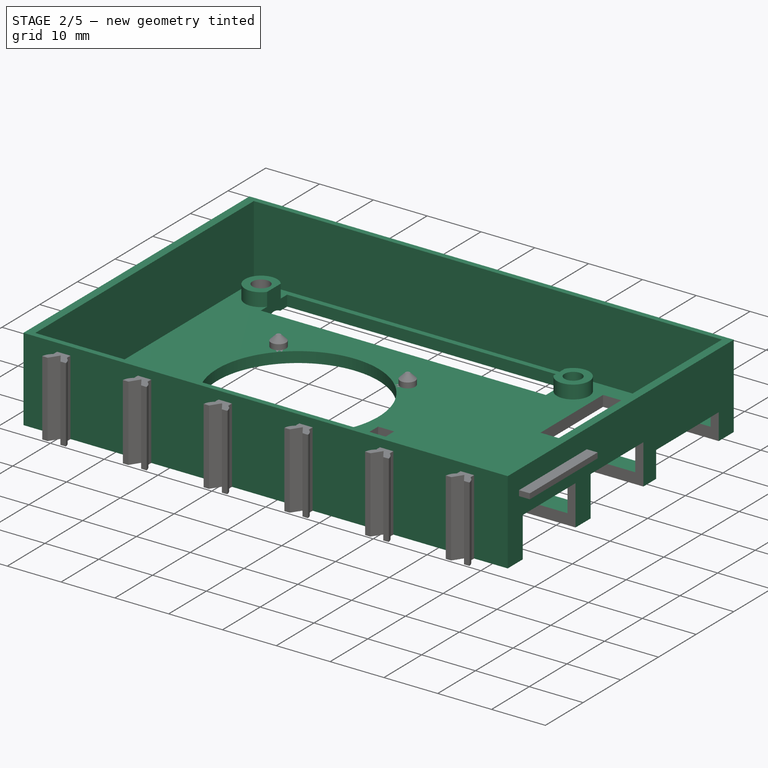
[diagram: stage 2 of 5 — iso view after this stage's code; geometry added in this stage tinted green]
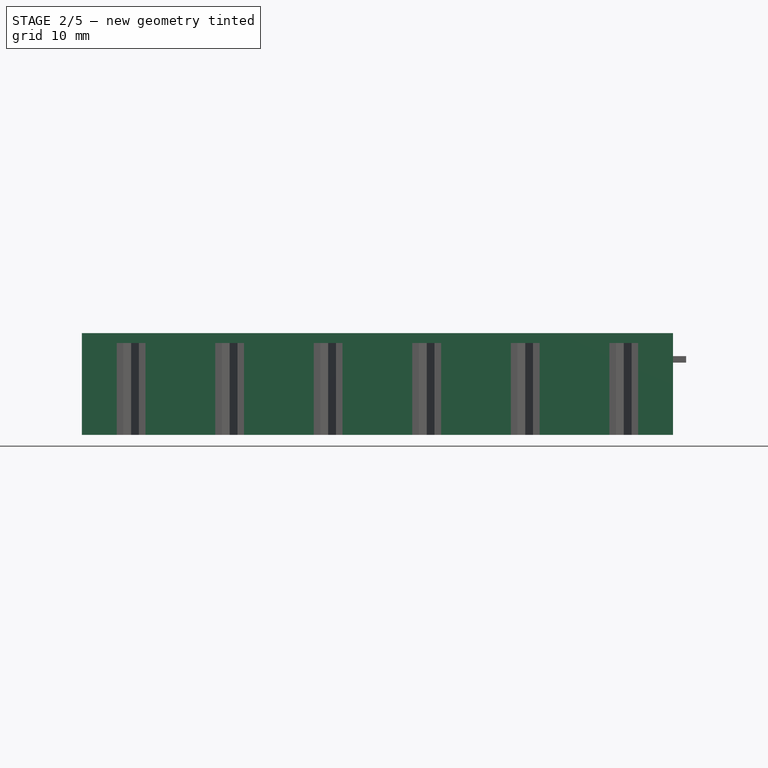
[diagram: stage 2 of 5 — front view after this stage's code; geometry added in this stage tinted green]
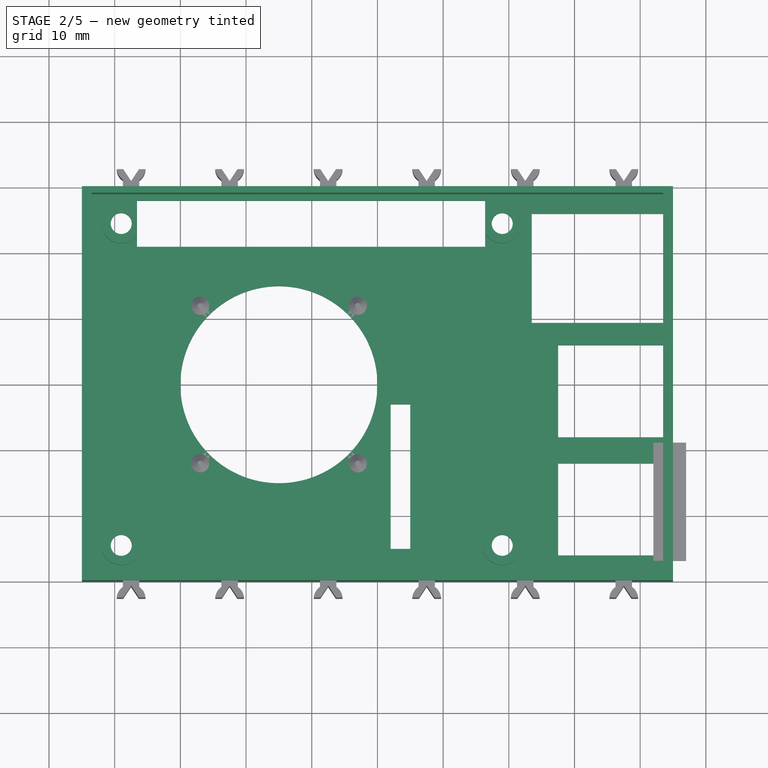
[diagram: stage 2 of 5 — top view after this stage's code; geometry added in this stage tinted green]
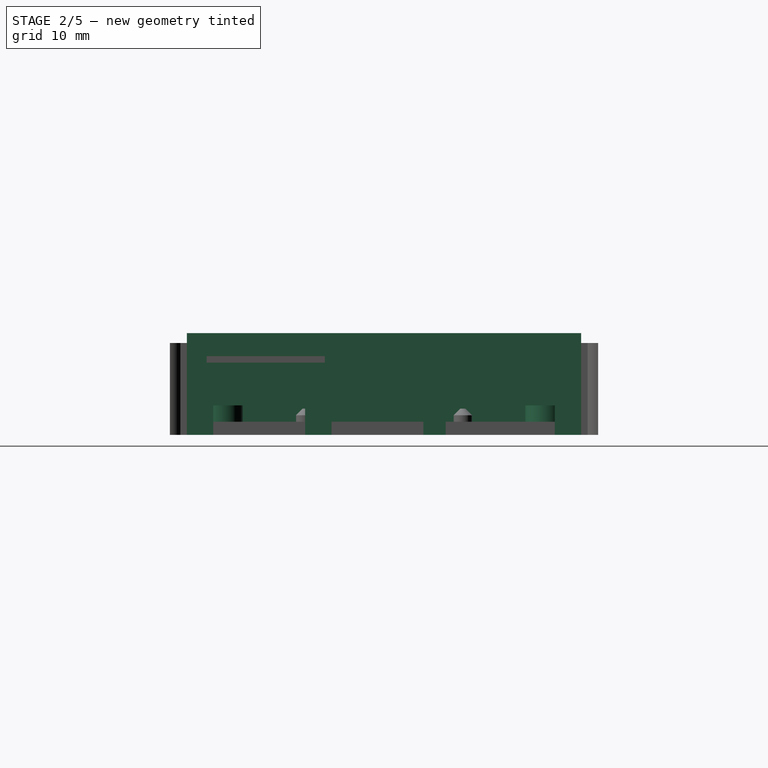
[diagram: stage 2 of 5 — right view after this stage's code; geometry added in this stage tinted green]
FEATURE [Part::Cylinder] Cylinder027  label="Zylinder026"
  Angle = 360
  AttacherType = Attacher::AttachEngine3D
  Height = 2.5
  Placement = pos=(-39,24.5,2) rot=(0,0,1;0rad)
  Radius = 3
FEATURE [Part::Cylinder] Cylinder029  label="Zylinder028"
  Angle = 360
  AttacherType = Attacher::AttachEngine3D
  Height = 2.5
  Placement = pos=(-39,-24.5,2) rot=(0,0,1;0rad)
  Radius = 3
FEATURE [Sketcher::SketchObject] Sketch017
  MapMode = 5
  Placement = pos=(0,0,0) rot=(1,0,0;3.14159rad)
  sketch-geometry (13):
    g0: GeomPoint [constr] X=-37.5 Y=30 Z=0
    g1: LineSegment StartX=-38.75 StartY=30 StartZ=0 EndX=-36.25 EndY=30 EndZ=0
    g2: LineSegment StartX=-38.75 StartY=30 StartZ=0 EndX=-38.75 EndY=31 EndZ=0
    g3: LineSegment StartX=-36.25 StartY=30 StartZ=0 EndX=-36.25 EndY=31 EndZ=0
    g4: LineSegment [constr] StartX=-38.75 StartY=31 StartZ=0 EndX=-36.25 EndY=31 EndZ=0
    g5: ArcOfCircle CenterX=-37.5 CenterY=32.8104 CenterZ=0 NormalX=0 NormalY=0 NormalZ=1 AngleXU=0 Radius=2.2 StartAngle=3.23737 EndAngle=4.10809
    g6: ArcOfCircle CenterX=-37.5 CenterY=32.8104 CenterZ=0 NormalX=0 NormalY=0 NormalZ=1 AngleXU=0 Radius=2.2 StartAngle=5.31668 EndAngle=6.18741
    g7: LineSegment StartX=-39.6899 StartY=32.6 StartZ=0 EndX=-38.6899 EndY=32.6 EndZ=0
    g8: LineSegment StartX=-35.3101 StartY=32.6 StartZ=0 EndX=-36.3101 EndY=32.6 EndZ=0
    g9: LineSegment [constr] StartX=-38.6899 StartY=32.6 StartZ=0 EndX=-36.3101 EndY=32.6 EndZ=0
    g10: LineSegment StartX=-38.6899 StartY=32.6 StartZ=0 EndX=-37.5 EndY=30.8104 EndZ=0
    g11: LineSegment StartX=-37.5 StartY=30.8104 StartZ=0 EndX=-36.3101 EndY=32.6 EndZ=0
    g12: LineSegment [constr] StartX=-37.5 StartY=32.8104 StartZ=0 EndX=-37.5 EndY=30.8104 EndZ=0
  constraints (33):
    c: DistanceX(g0,g-1) = 37.5
    c: Symmetric(g1,g1,g0)
    c: DistanceX(g1,g1) = 2.5
    c: Vertical(g2)
    c: Vertical(g3)
    c: Coincident(g4,g2)
    c: Coincident(g4,g3)
    c: Coincident(g2,g1)
    c: Coincident(g1,g3)
    c: DistanceY(g1,g3) = 1
    c: Horizontal(g4)
    c: Coincident(g5,g2)
    c: Coincident(g6,g3)
    c: Radius(g5) = 2.2
    c: Equal(g5,g6)
    c: Coincident(g7,g5)
    c: Horizontal(g7)
    c: Coincident(g8,g6)
    c: Horizontal(g8)
    c: DistanceY(g1,g6) = 2.6
    c: DistanceX(g5,g7) = 1
    c: DistanceX(g8,g6) = 1
    c: Coincident(g9,g7)
    c: Coincident(g9,g8)
    c: Horizontal(g9)
    c: Coincident(g6,g5)
    c: Coincident(g10,g7)
    c: Coincident(g11,g8)
    c: Coincident(g10,g11)
    c: Coincident(g12,g5)
    c: Coincident(g12,g10)
    c: Vertical(g12)
    c: DistanceY(g10,g5) = 2
FEATURE [Part::Cylinder] Cylinder031  label="Zylinder030"
  Angle = 360
  AttacherType = Attacher::AttachEngine3D
  Height = 4.5
  Placement = pos=(-39,24.5,0) rot=(0,0,1;0rad)
  Radius = 1.6
FEATURE [Part::Box] Box047  label="Grundkoerper innen"
  AttacherType = Attacher::AttachEngine3D
  Height = 13.5
  Length = 87
  Placement = pos=(-43.5,-29,2) rot=(0,0,1;0rad)
  Width = 58
FEATURE [Part::Box] Box049  label="GPIO Header"
  AttacherType = Attacher::AttachEngine3D
  Height = 16
  Length = 53
  Placement = pos=(-36.61,21,0) rot=(0,0,1;0rad)
  Width = 7
FEATURE [Part::Box] Box050  label="Grundkoerper aussen"
  AttacherType = Attacher::AttachEngine3D
  Height = 15.5
  Length = 90
  Placement = pos=(-45,-30,0) rot=(0,0,1;0rad)
  Width = 60
FEATURE [Part::Cylinder] Cylinder033  label="Zylinder032"
  Angle = 360
  AttacherType = Attacher::AttachEngine3D
  Height = 2.5
  Placement = pos=(-39,-24.5,2) rot=(0,0,1;0rad)
  Radius = 3
FEATURE [Part::Cylinder] Cylinder034  label="Zylinder033"
  Angle = 360
  AttacherType = Attacher::AttachEngine3D
  Height = 2.5
  Placement = pos=(-39,24.5,2) rot=(0,0,1;0rad)
  Radius = 3
FEATURE [Part::MultiFuse] Fusion043
  Shapes = -> [Cylinder033,Cylinder034]
FEATURE [Part::MultiFuse] Fusion048
  Placement = pos=(58,0,0) rot=(0,0,1;0rad)
  Shapes = -> [Cylinder029,Cylinder027]
FEATURE [Part::MultiFuse] Fusion047  label="Stuetzen001"
  Shapes = -> [Fusion043,Fusion048]
FEATURE [Part::MultiFuse] Fusion050
  Shapes = -> [Cylinder030,Cylinder028]
FEATURE [Part::MultiFuse] Fusion042
  Placement = pos=(58,0,0) rot=(0,0,1;0rad)
  Shapes = -> [Cylinder035,Cylinder031]
FEATURE [Part::Cut] Cut017  label="Wanne roh 01"
  Base = -> Box050
  Tool = -> Box047
FEATURE [Part::MultiFuse] Fusion049  label="Wanne roh mit Stuetzen"
  Shapes = -> [Cut017,Fusion047]
FEATURE [Part::MultiFuse] Fusion052  label="Bohrungen001"
  Shapes = -> [Fusion050,Fusion042]
FEATURE [Part::MultiFuse] Fusion057  label="Aussparungen 1"
  Shapes = -> [Box049,Fusion052]
FEATURE [Part::Cut] Cut018  label="Wanne geschnitten 1"
  Base = -> Fusion049
  Tool = -> Fusion057
FEATURE [Part::Cylinder] Cylinder047  label="Zylinder046"
  Angle = 360
  AttacherType = Attacher::AttachEngine3D
  Height = 19
  Placement = pos=(-15,0,0) rot=(0,0,1;0rad)
  Radius = 15
FEATURE [Part::Cut] Cut
  Base = -> Cut018
  Tool = -> Fusion071
FEATURE [Part::Cut] Cut028  label="Wanne ohne Federn"
  Base = -> Cut
  Tool = -> Cylinder047
FEATURE [Part::MultiFuse] Fusion079
  Shapes = -> [Cut028,Fusion074]
FEATURE [Part::Chamfer] Chamfer015
  Base = -> Fusion079
  Edges = 2 edges r=1.5: [Edge29,Edge35]
FEATURE [Part::MultiFuse] Fusion082  label="Wanne Pi4"
  Shapes = -> [Chamfer015,Fusion081]
FEATURE [Sketcher::SketchObject] Sketch022
  MapMode = 5
  Placement = pos=(0,0,0) rot=(1,0,0;3.14159rad)
  sketch-geometry (13):
    g0: GeomPoint [constr] X=-37.5 Y=30 Z=0
    g1: LineSegment StartX=-38.75 StartY=30 StartZ=0 EndX=-36.25 EndY=30 EndZ=0
    g2: LineSegment StartX=-38.75 StartY=30 StartZ=0 EndX=-38.75 EndY=31 EndZ=0
    g3: LineSegment StartX=-36.25 StartY=30 StartZ=0 EndX=-36.25 EndY=31 EndZ=0
    g4: LineSegment [constr] StartX=-38.75 StartY=31 StartZ=0 EndX=-36.25 EndY=31 EndZ=0
    g5: ArcOfCircle CenterX=-37.5 CenterY=32.8104 CenterZ=0 NormalX=0 NormalY=0 NormalZ=1 AngleXU=0 Radius=2.2 StartAngle=3.23737 EndAngle=4.10809
    g6: ArcOfCircle CenterX=-37.5 CenterY=32.8104 CenterZ=0 NormalX=0 NormalY=0 NormalZ=1 AngleXU=0 Radius=2.2 StartAngle=5.31668 EndAngle=6.18741
    g7: LineSegment StartX=-39.6899 StartY=32.6 StartZ=0 EndX=-38.6899 EndY=32.6 EndZ=0
    g8: LineSegment StartX=-35.3101 StartY=32.6 StartZ=0 EndX=-36.3101 EndY=32.6 EndZ=0
    g9: LineSegment [constr] StartX=-38.6899 StartY=32.6 StartZ=0 EndX=-36.3101 EndY=32.6 EndZ=0
    g10: LineSegment StartX=-38.6899 StartY=32.6 StartZ=0 EndX=-37.5 EndY=30.8104 EndZ=0
    g11: LineSegment StartX=-37.5 StartY=30.8104 StartZ=0 EndX=-36.3101 EndY=32.6 EndZ=0
    g12: LineSegment [constr] StartX=-37.5 StartY=32.8104 StartZ=0 EndX=-37.5 EndY=30.8104 EndZ=0
  constraints (33):
    c: DistanceX(g0,g-1) = 37.5
    c: Symmetric(g1,g1,g0)
    c: DistanceX(g1,g1) = 2.5
    c: Vertical(g2)
    c: Vertical(g3)
    c: Coincident(g4,g2)
    c: Coincident(g4,g3)
    c: Coincident(g2,g1)
    c: Coincident(g1,g3)
    c: DistanceY(g1,g3) = 1
    c: Horizontal(g4)
    c: Coincident(g5,g2)
    c: Coincident(g6,g3)
    c: Radius(g5) = 2.2
    c: Equal(g5,g6)
    c: Coincident(g7,g5)
    c: Horizontal(g7)
    c: Coincident(g8,g6)
    c: Horizontal(g8)
    c: DistanceY(g1,g6) = 2.6
    c: DistanceX(g5,g7) = 1
    c: DistanceX(g8,g6) = 1
    c: Coincident(g9,g7)
    c: Coincident(g9,g8)
    c: Horizontal(g9)
    c: Coincident(g6,g5)
    c: Coincident(g10,g7)
    c: Coincident(g11,g8)
    c: Coincident(g10,g11)
    c: Coincident(g12,g5)
    c: Coincident(g12,g10)
    c: Vertical(g12)
    c: DistanceY(g10,g5) = 2
FEATURE [Sketcher::SketchObject] Sketch023
  MapMode = 5
  Placement = pos=(0,0,0) rot=(1,0,0;3.14159rad)
  sketch-geometry (13):
    g0: GeomPoint [constr] X=-37.5 Y=30 Z=0
    g1: LineSegment StartX=-38.75 StartY=30 StartZ=0 EndX=-36.25 EndY=30 EndZ=0
    g2: LineSegment StartX=-38.75 StartY=30 StartZ=0 EndX=-38.75 EndY=31 EndZ=0
    g3: LineSegment StartX=-36.25 StartY=30 StartZ=0 EndX=-36.25 EndY=31 EndZ=0
    g4: LineSegment [constr] StartX=-38.75 StartY=31 StartZ=0 EndX=-36.25 EndY=31 EndZ=0
    g5: ArcOfCircle CenterX=-37.5 CenterY=32.8104 CenterZ=0 NormalX=0 NormalY=0 NormalZ=1 AngleXU=0 Radius=2.2 StartAngle=3.23737 EndAngle=4.10809
    g6: ArcOfCircle CenterX=-37.5 CenterY=32.8104 CenterZ=0 NormalX=0 NormalY=0 NormalZ=1 AngleXU=0 Radius=2.2 StartAngle=5.31668 EndAngle=6.18741
    g7: LineSegment StartX=-39.6899 StartY=32.6 StartZ=0 EndX=-38.6899 EndY=32.6 EndZ=0
    g8: LineSegment StartX=-35.3101 StartY=32.6 StartZ=0 EndX=-36.3101 EndY=32.6 EndZ=0
    g9: LineSegment [constr] StartX=-38.6899 StartY=32.6 StartZ=0 EndX=-36.3101 EndY=32.6 EndZ=0
    g10: LineSegment StartX=-38.6899 StartY=32.6 StartZ=0 EndX=-37.5 EndY=30.8104 EndZ=0
    g11: LineSegment StartX=-37.5 StartY=30.8104 StartZ=0 EndX=-36.3101 EndY=32.6 EndZ=0
    g12: LineSegment [constr] StartX=-37.5 StartY=32.8104 StartZ=0 EndX=-37.5 EndY=30.8104 EndZ=0
  constraints (33):
    c: DistanceX(g0,g-1) = 37.5
    c: Symmetric(g1,g1,g0)
    c: DistanceX(g1,g1) = 2.5
    c: Vertical(g2)
    c: Vertical(g3)
    c: Coincident(g4,g2)
    c: Coincident(g4,g3)
    c: Coincident(g2,g1)
    c: Coincident(g1,g3)
    c: DistanceY(g1,g3) = 1
    c: Horizontal(g4)
    c: Coincident(g5,g2)
    c: Coincident(g6,g3)
    c: Radius(g5) = 2.2
    c: Equal(g5,g6)
    c: Coincident(g7,g5)
    c: Horizontal(g7)
    c: Coincident(g8,g6)
    c: Horizontal(g8)
    c: DistanceY(g1,g6) = 2.6
    c: DistanceX(g5,g7) = 1
    c: DistanceX(g8,g6) = 1
    c: Coincident(g9,g7)
    c: Coincident(g9,g8)
    c: Horizontal(g9)
    c: Coincident(g6,g5)
    c: Coincident(g10,g7)
    c: Coincident(g11,g8)
    c: Coincident(g10,g11)
    c: Coincident(g12,g5)
    c: Coincident(g12,g10)
    c: Vertical(g12)
    c: DistanceY(g10,g5) = 2
FEATURE [Sketcher::SketchObject] Sketch024
  MapMode = 5
  Placement = pos=(0,0,0) rot=(1,0,0;3.14159rad)
  sketch-geometry (13):
    g0: GeomPoint [constr] X=-37.5 Y=30 Z=0
    g1: LineSegment StartX=-38.75 StartY=30 StartZ=0 EndX=-36.25 EndY=30 EndZ=0
    g2: LineSegment StartX=-38.75 StartY=30 StartZ=0 EndX=-38.75 EndY=31 EndZ=0
    g3: LineSegment StartX=-36.25 StartY=30 StartZ=0 EndX=-36.25 EndY=31 EndZ=0
    g4: LineSegment [constr] StartX=-38.75 StartY=31 StartZ=0 EndX=-36.25 EndY=31 EndZ=0
    g5: ArcOfCircle CenterX=-37.5 CenterY=32.8104 CenterZ=0 NormalX=0 NormalY=0 NormalZ=1 AngleXU=0 Radius=2.2 StartAngle=3.23737 EndAngle=4.10809
    g6: ArcOfCircle CenterX=-37.5 CenterY=32.8104 CenterZ=0 NormalX=0 NormalY=0 NormalZ=1 AngleXU=0 Radius=2.2 StartAngle=5.31668 EndAngle=6.18741
    g7: LineSegment StartX=-39.6899 StartY=32.6 StartZ=0 EndX=-38.6899 EndY=32.6 EndZ=0
    g8: LineSegment StartX=-35.3101 StartY=32.6 StartZ=0 EndX=-36.3101 EndY=32.6 EndZ=0
    g9: LineSegment [constr] StartX=-38.6899 StartY=32.6 StartZ=0 EndX=-36.3101 EndY=32.6 EndZ=0
    g10: LineSegment StartX=-38.6899 StartY=32.6 StartZ=0 EndX=-37.5 EndY=30.8104 EndZ=0
    g11: LineSegment StartX=-37.5 StartY=30.8104 StartZ=0 EndX=-36.3101 EndY=32.6 EndZ=0
    g12: LineSegment [constr] StartX=-37.5 StartY=32.8104 StartZ=0 EndX=-37.5 EndY=30.8104 EndZ=0
  constraints (33):
    c: DistanceX(g0,g-1) = 37.5
    c: Symmetric(g1,g1,g0)
    c: DistanceX(g1,g1) = 2.5
    c: Vertical(g2)
    c: Vertical(g3)
    c: Coincident(g4,g2)
    c: Coincident(g4,g3)
    c: Coincident(g2,g1)
    c: Coincident(g1,g3)
    c: DistanceY(g1,g3) = 1
    c: Horizontal(g4)
    c: Coincident(g5,g2)
    c: Coincident(g6,g3)
    c: Radius(g5) = 2.2
    c: Equal(g5,g6)
    c: Coincident(g7,g5)
    c: Horizontal(g7)
    c: Coincident(g8,g6)
    c: Horizontal(g8)
    c: DistanceY(g1,g6) = 2.6
    c: DistanceX(g5,g7) = 1
    c: DistanceX(g8,g6) = 1
    c: Coincident(g9,g7)
    c: Coincident(g9,g8)
    c: Horizontal(g9)
    c: Coincident(g6,g5)
    c: Coincident(g10,g7)
    c: Coincident(g11,g8)
    c: Coincident(g10,g11)
    c: Coincident(g12,g5)
    c: Coincident(g12,g10)
    c: Vertical(g12)
    c: DistanceY(g10,g5) = 2
FEATURE [Sketcher::SketchObject] Sketch025
  MapMode = 5
  Placement = pos=(0,0,0) rot=(1,0,0;3.14159rad)
  sketch-geometry (13):
    g0: GeomPoint [constr] X=-37.5 Y=30 Z=0
    g1: LineSegment StartX=-38.75 StartY=30 StartZ=0 EndX=-36.25 EndY=30 EndZ=0
    g2: LineSegment StartX=-38.75 StartY=30 StartZ=0 EndX=-38.75 EndY=31 EndZ=0
    g3: LineSegment StartX=-36.25 StartY=30 StartZ=0 EndX=-36.25 EndY=31 EndZ=0
    g4: LineSegment [constr] StartX=-38.75 StartY=31 StartZ=0 EndX=-36.25 EndY=31 EndZ=0
    g5: ArcOfCircle CenterX=-37.5 CenterY=32.8104 CenterZ=0 NormalX=0 NormalY=0 NormalZ=1 AngleXU=0 Radius=2.2 StartAngle=3.23737 EndAngle=4.10809
    g6: ArcOfCircle CenterX=-37.5 CenterY=32.8104 CenterZ=0 NormalX=0 NormalY=0 NormalZ=1 AngleXU=0 Radius=2.2 StartAngle=5.31668 EndAngle=6.18741
    g7: LineSegment StartX=-39.6899 StartY=32.6 StartZ=0 EndX=-38.6899 EndY=32.6 EndZ=0
    g8: LineSegment StartX=-35.3101 StartY=32.6 StartZ=0 EndX=-36.3101 EndY=32.6 EndZ=0
    g9: LineSegment [constr] StartX=-38.6899 StartY=32.6 StartZ=0 EndX=-36.3101 EndY=32.6 EndZ=0
    g10: LineSegment StartX=-38.6899 StartY=32.6 StartZ=0 EndX=-37.5 EndY=30.8104 EndZ=0
    g11: LineSegment StartX=-37.5 StartY=30.8104 StartZ=0 EndX=-36.3101 EndY=32.6 EndZ=0
    g12: LineSegment [constr] StartX=-37.5 StartY=32.8104 StartZ=0 EndX=-37.5 EndY=30.8104 EndZ=0
  constraints (33):
    c: DistanceX(g0,g-1) = 37.5
    c: Symmetric(g1,g1,g0)
    c: DistanceX(g1,g1) = 2.5
    c: Vertical(g2)
    c: Vertical(g3)
    c: Coincident(g4,g2)
    c: Coincident(g4,g3)
    c: Coincident(g2,g1)
    c: Coincident(g1,g3)
    c: DistanceY(g1,g3) = 1
    c: Horizontal(g4)
    c: Coincident(g5,g2)
    c: Coincident(g6,g3)
    c: Radius(g5) = 2.2
    c: Equal(g5,g6)
    c: Coincident(g7,g5)
    c: Horizontal(g7)
    c: Coincident(g8,g6)
    c: Horizontal(g8)
    c: DistanceY(g1,g6) = 2.6
    c: DistanceX(g5,g7) = 1
    c: DistanceX(g8,g6) = 1
    c: Coincident(g9,g7)
    c: Coincident(g9,g8)
    c: Horizontal(g9)
    c: Coincident(g6,g5)
    c: Coincident(g10,g7)
    c: Coincident(g11,g8)
    c: Coincident(g10,g11)
    c: Coincident(g12,g5)
    c: Coincident(g12,g10)
    c: Vertical(g12)
    c: DistanceY(g10,g5) = 2
FEATURE [Sketcher::SketchObject] Sketch026
  MapMode = 5
  Placement = pos=(0,0,0) rot=(1,0,0;3.14159rad)
  sketch-geometry (13):
    g0: GeomPoint [constr] X=-37.5 Y=30 Z=0
    g1: LineSegment StartX=-38.75 StartY=30 StartZ=0 EndX=-36.25 EndY=30 EndZ=0
    g2: LineSegment StartX=-38.75 StartY=30 StartZ=0 EndX=-38.75 EndY=31 EndZ=0
    g3: LineSegment StartX=-36.25 StartY=30 StartZ=0 EndX=-36.25 EndY=31 EndZ=0
    g4: LineSegment [constr] StartX=-38.75 StartY=31 StartZ=0 EndX=-36.25 EndY=31 EndZ=0
    g5: ArcOfCircle CenterX=-37.5 CenterY=32.8104 CenterZ=0 NormalX=0 NormalY=0 NormalZ=1 AngleXU=0 Radius=2.2 StartAngle=3.23737 EndAngle=4.10809
    g6: ArcOfCircle CenterX=-37.5 CenterY=32.8104 CenterZ=0 NormalX=0 NormalY=0 NormalZ=1 AngleXU=0 Radius=2.2 StartAngle=5.31668 EndAngle=6.18741
    g7: LineSegment StartX=-39.6899 StartY=32.6 StartZ=0 EndX=-38.6899 EndY=32.6 EndZ=0
    g8: LineSegment StartX=-35.3101 StartY=32.6 StartZ=0 EndX=-36.3101 EndY=32.6 EndZ=0
    g9: LineSegment [constr] StartX=-38.6899 StartY=32.6 StartZ=0 EndX=-36.3101 EndY=32.6 EndZ=0
    g10: LineSegment StartX=-38.6899 StartY=32.6 StartZ=0 EndX=-37.5 EndY=30.8104 EndZ=0
    g11: LineSegment StartX=-37.5 StartY=30.8104 StartZ=0 EndX=-36.3101 EndY=32.6 EndZ=0
    g12: LineSegment [constr] StartX=-37.5 StartY=32.8104 StartZ=0 EndX=-37.5 EndY=30.8104 EndZ=0
  constraints (33):
    c: DistanceX(g0,g-1) = 37.5
    c: Symmetric(g1,g1,g0)
    c: DistanceX(g1,g1) = 2.5
    c: Vertical(g2)
    c: Vertical(g3)
    c: Coincident(g4,g2)
    c: Coincident(g4,g3)
    c: Coincident(g2,g1)
    c: Coincident(g1,g3)
    c: DistanceY(g1,g3) = 1
    c: Horizontal(g4)
    c: Coincident(g5,g2)
    c: Coincident(g6,g3)
    c: Radius(g5) = 2.2
    c: Equal(g5,g6)
    c: Coincident(g7,g5)
    c: Horizontal(g7)
    c: Coincident(g8,g6)
    c: Horizontal(g8)
    c: DistanceY(g1,g6) = 2.6
    c: DistanceX(g5,g7) = 1
    c: DistanceX(g8,g6) = 1
    c: Coincident(g9,g7)
    c: Coincident(g9,g8)
    c: Horizontal(g9)
    c: Coincident(g6,g5)
    c: Coincident(g10,g7)
    c: Coincident(g11,g8)
    c: Coincident(g10,g11)
    c: Coincident(g12,g5)
    c: Coincident(g12,g10)
    c: Vertical(g12)
    c: DistanceY(g10,g5) = 2
FEATURE [Part::Extrusion] Extrude021
  Base = -> Sketch026
  Dir = (0,0,1)
  DirMode = 0
  FaceMakerClass = Part::FaceMakerBullseye
  LengthFwd = 14
  LengthRev = 0
  Solid = true
  Symmetric = false
FEATURE [Part::Extrusion] Extrude022
  Base = -> Sketch025
  Dir = (0,0,1)
  DirMode = 0
  FaceMakerClass = Part::FaceMakerBullseye
  LengthFwd = 14
  LengthRev = 0
  Placement = pos=(60,0,0) rot=(0,0,1;0rad)
  Solid = true
  Symmetric = false
FEATURE [Part::Extrusion] Extrude024
  Base = -> Sketch023
  Dir = (0,0,1)
  DirMode = 0
  FaceMakerClass = Part::FaceMakerBullseye
  LengthFwd = 14
  LengthRev = 0
  Placement = pos=(0,0,0) rot=(0,0,1;3.14159rad)
  Solid = true
  Symmetric = false
FEATURE [Part::Extrusion] Extrude025
  Base = -> Sketch022
  Dir = (0,0,1)
  DirMode = 0
  FaceMakerClass = Part::FaceMakerBullseye
  LengthFwd = 14
  LengthRev = 0
  Placement = pos=(-75,0,0) rot=(0,0,1;3.14159rad)
  Solid = true
  Symmetric = false
FEATURE [Sketcher::SketchObject] Sketch027
  MapMode = 5
  Placement = pos=(0,0,0) rot=(1,0,0;3.14159rad)
  sketch-geometry (13):
    g0: GeomPoint [constr] X=-37.5 Y=30 Z=0
    g1: LineSegment StartX=-38.75 StartY=30 StartZ=0 EndX=-36.25 EndY=30 EndZ=0
    g2: LineSegment StartX=-38.75 StartY=30 StartZ=0 EndX=-38.75 EndY=31 EndZ=0
    g3: LineSegment StartX=-36.25 StartY=30 StartZ=0 EndX=-36.25 EndY=31 EndZ=0
    g4: LineSegment [constr] StartX=-38.75 StartY=31 StartZ=0 EndX=-36.25 EndY=31 EndZ=0
    g5: ArcOfCircle CenterX=-37.5 CenterY=32.8104 CenterZ=0 NormalX=0 NormalY=0 NormalZ=1 AngleXU=0 Radius=2.2 StartAngle=3.23737 EndAngle=4.10809
    g6: ArcOfCircle CenterX=-37.5 CenterY=32.8104 CenterZ=0 NormalX=0 NormalY=0 NormalZ=1 AngleXU=0 Radius=2.2 StartAngle=5.31668 EndAngle=6.18741
    g7: LineSegment StartX=-39.6899 StartY=32.6 StartZ=0 EndX=-38.6899 EndY=32.6 EndZ=0
    g8: LineSegment StartX=-35.3101 StartY=32.6 StartZ=0 EndX=-36.3101 EndY=32.6 EndZ=0
    g9: LineSegment [constr] StartX=-38.6899 StartY=32.6 StartZ=0 EndX=-36.3101 EndY=32.6 EndZ=0
    g10: LineSegment StartX=-38.6899 StartY=32.6 StartZ=0 EndX=-37.5 EndY=30.8104 EndZ=0
    g11: LineSegment StartX=-37.5 StartY=30.8104 StartZ=0 EndX=-36.3101 EndY=32.6 EndZ=0
    g12: LineSegment [constr] StartX=-37.5 StartY=32.8104 StartZ=0 EndX=-37.5 EndY=30.8104 EndZ=0
  constraints (33):
    c: DistanceX(g0,g-1) = 37.5
    c: Symmetric(g1,g1,g0)
    c: DistanceX(g1,g1) = 2.5
    c: Vertical(g2)
    c: Vertical(g3)
    c: Coincident(g4,g2)
    c: Coincident(g4,g3)
    c: Coincident(g2,g1)
    c: Coincident(g1,g3)
    c: DistanceY(g1,g3) = 1
    c: Horizontal(g4)
    c: Coincident(g5,g2)
    c: Coincident(g6,g3)
    c: Radius(g5) = 2.2
    c: Equal(g5,g6)
    c: Coincident(g7,g5)
    c: Horizontal(g7)
    c: Coincident(g8,g6)
    c: Horizontal(g8)
    c: DistanceY(g1,g6) = 2.6
    c: DistanceX(g5,g7) = 1
    c: DistanceX(g8,g6) = 1
    c: Coincident(g9,g7)
    c: Coincident(g9,g8)
    c: Horizontal(g9)
    c: Coincident(g6,g5)
    c: Coincident(g10,g7)
    c: Coincident(g11,g8)
    c: Coincident(g10,g11)
    c: Coincident(g12,g5)
    c: Coincident(g12,g10)
    c: Vertical(g12)
    c: DistanceY(g10,g5) = 2
FEATURE [Part::Extrusion] Extrude020
  Base = -> Sketch027
  Dir = (0,0,1)
  DirMode = 0
  FaceMakerClass = Part::FaceMakerBullseye
  LengthFwd = 14
  LengthRev = 0
  Placement = pos=(-30,0,0) rot=(0,0,1;3.14159rad)
  Solid = true
  Symmetric = false
FEATURE [Part::Extrusion] Extrude027
  Base = -> Sketch024
  Dir = (0,0,1)
  DirMode = 0
  FaceMakerClass = Part::FaceMakerBullseye
  LengthFwd = 14
  LengthRev = 0
  Placement = pos=(75,0,0) rot=(0,0,1;0rad)
  Solid = true
  Symmetric = false
FEATURE [Sketcher::SketchObject] Sketch029
  MapMode = 5
  Placement = pos=(0,0,0) rot=(1,0,0;3.14159rad)
  sketch-geometry (13):
    g0: GeomPoint [constr] X=-37.5 Y=30 Z=0
    g1: LineSegment StartX=-38.75 StartY=30 StartZ=0 EndX=-36.25 EndY=30 EndZ=0
    g2: LineSegment StartX=-38.75 StartY=30 StartZ=0 EndX=-38.75 EndY=31 EndZ=0
    g3: LineSegment StartX=-36.25 StartY=30 StartZ=0 EndX=-36.25 EndY=31 EndZ=0
    g4: LineSegment [constr] StartX=-38.75 StartY=31 StartZ=0 EndX=-36.25 EndY=31 EndZ=0
    g5: ArcOfCircle CenterX=-37.5 CenterY=32.8104 CenterZ=0 NormalX=0 NormalY=0 NormalZ=1 AngleXU=0 Radius=2.2 StartAngle=3.23737 EndAngle=4.10809
    g6: ArcOfCircle CenterX=-37.5 CenterY=32.8104 CenterZ=0 NormalX=0 NormalY=0 NormalZ=1 AngleXU=0 Radius=2.2 StartAngle=5.31668 EndAngle=6.18741
    g7: LineSegment StartX=-39.6899 StartY=32.6 StartZ=0 EndX=-38.6899 EndY=32.6 EndZ=0
    g8: LineSegment StartX=-35.3101 StartY=32.6 StartZ=0 EndX=-36.3101 EndY=32.6 EndZ=0
    g9: LineSegment [constr] StartX=-38.6899 StartY=32.6 StartZ=0 EndX=-36.3101 EndY=32.6 EndZ=0
    g10: LineSegment StartX=-38.6899 StartY=32.6 StartZ=0 EndX=-37.5 EndY=30.8104 EndZ=0
    g11: LineSegment StartX=-37.5 StartY=30.8104 StartZ=0 EndX=-36.3101 EndY=32.6 EndZ=0
    g12: LineSegment [constr] StartX=-37.5 StartY=32.8104 StartZ=0 EndX=-37.5 EndY=30.8104 EndZ=0
  constraints (33):
    c: DistanceX(g0,g-1) = 37.5
    c: Symmetric(g1,g1,g0)
    c: DistanceX(g1,g1) = 2.5
    c: Vertical(g2)
    c: Vertical(g3)
    c: Coincident(g4,g2)
    c: Coincident(g4,g3)
    c: Coincident(g2,g1)
    c: Coincident(g1,g3)
    c: DistanceY(g1,g3) = 1
    c: Horizontal(g4)
    c: Coincident(g5,g2)
    c: Coincident(g6,g3)
    c: Radius(g5) = 2.2
    c: Equal(g5,g6)
    c: Coincident(g7,g5)
    c: Horizontal(g7)
    c: Coincident(g8,g6)
    c: Horizontal(g8)
    c: DistanceY(g1,g6) = 2.6
    c: DistanceX(g5,g7) = 1
    c: DistanceX(g8,g6) = 1
    c: Coincident(g9,g7)
    c: Coincident(g9,g8)
    c: Horizontal(g9)
    c: Coincident(g6,g5)
    c: Coincident(g10,g7)
    c: Coincident(g11,g8)
    c: Coincident(g10,g11)
    c: Coincident(g12,g5)
    c: Coincident(g12,g10)
    c: Vertical(g12)
    c: DistanceY(g10,g5) = 2
FEATURE [Part::Extrusion] Extrude026
  Base = -> Sketch029
  Dir = (0,0,1)
  DirMode = 0
  FaceMakerClass = Part::FaceMakerBullseye
  LengthFwd = 14
  LengthRev = 0
  Placement = pos=(-60,0,0) rot=(0,0,1;3.14159rad)
  Solid = true
  Symmetric = false
FEATURE [Part::Extrusion] Extrude028
  Base = -> Sketch028
  Dir = (0,0,1)
  DirMode = 0
  FaceMakerClass = Part::FaceMakerBullseye
  LengthFwd = 14
  LengthRev = 0
  Placement = pos=(-45,0,0) rot=(0,0,1;3.14159rad)
  Solid = true
  Symmetric = false
FEATURE [Sketcher::SketchObject] Sketch030
  MapMode = 5
  Placement = pos=(0,0,0) rot=(1,0,0;3.14159rad)
  sketch-geometry (13):
    g0: GeomPoint [constr] X=-37.5 Y=30 Z=0
    g1: LineSegment StartX=-38.75 StartY=30 StartZ=0 EndX=-36.25 EndY=30 EndZ=0
    g2: LineSegment StartX=-38.75 StartY=30 StartZ=0 EndX=-38.75 EndY=31 EndZ=0
    g3: LineSegment StartX=-36.25 StartY=30 StartZ=0 EndX=-36.25 EndY=31 EndZ=0
    g4: LineSegment [constr] StartX=-38.75 StartY=31 StartZ=0 EndX=-36.25 EndY=31 EndZ=0
    g5: ArcOfCircle CenterX=-37.5 CenterY=32.8104 CenterZ=0 NormalX=0 NormalY=0 NormalZ=1 AngleXU=0 Radius=2.2 StartAngle=3.23737 EndAngle=4.10809
    g6: ArcOfCircle CenterX=-37.5 CenterY=32.8104 CenterZ=0 NormalX=0 NormalY=0 NormalZ=1 AngleXU=0 Radius=2.2 StartAngle=5.31668 EndAngle=6.18741
    g7: LineSegment StartX=-39.6899 StartY=32.6 StartZ=0 EndX=-38.6899 EndY=32.6 EndZ=0
    g8: LineSegment StartX=-35.3101 StartY=32.6 StartZ=0 EndX=-36.3101 EndY=32.6 EndZ=0
    g9: LineSegment [constr] StartX=-38.6899 StartY=32.6 StartZ=0 EndX=-36.3101 EndY=32.6 EndZ=0
    g10: LineSegment StartX=-38.6899 StartY=32.6 StartZ=0 EndX=-37.5 EndY=30.8104 EndZ=0
    g11: LineSegment StartX=-37.5 StartY=30.8104 StartZ=0 EndX=-36.3101 EndY=32.6 EndZ=0
    g12: LineSegment [constr] StartX=-37.5 StartY=32.8104 StartZ=0 EndX=-37.5 EndY=30.8104 EndZ=0
  constraints (33):
    c: DistanceX(g0,g-1) = 37.5
    c: Symmetric(g1,g1,g0)
    c: DistanceX(g1,g1) = 2.5
    c: Vertical(g2)
    c: Vertical(g3)
    c: Coincident(g4,g2)
    c: Coincident(g4,g3)
    c: Coincident(g2,g1)
    c: Coincident(g1,g3)
    c: DistanceY(g1,g3) = 1
    c: Horizontal(g4)
    c: Coincident(g5,g2)
    c: Coincident(g6,g3)
    c: Radius(g5) = 2.2
    c: Equal(g5,g6)
    c: Coincident(g7,g5)
    c: Horizontal(g7)
    c: Coincident(g8,g6)
    c: Horizontal(g8)
    c: DistanceY(g1,g6) = 2.6
    c: DistanceX(g5,g7) = 1
    c: DistanceX(g8,g6) = 1
    c: Coincident(g9,g7)
    c: Coincident(g9,g8)
    c: Horizontal(g9)
    c: Coincident(g6,g5)
    c: Coincident(g10,g7)
    c: Coincident(g11,g8)
    c: Coincident(g10,g11)
    c: Coincident(g12,g5)
    c: Coincident(g12,g10)
    c: Vertical(g12)
    c: DistanceY(g10,g5) = 2
FEATURE [Part::Extrusion] Extrude023
  Base = -> Sketch030
  Dir = (0,0,1)
  DirMode = 0
  FaceMakerClass = Part::FaceMakerBullseye
  LengthFwd = 14
  LengthRev = 0
  Placement = pos=(-15,0,0) rot=(0,0,1;3.14159rad)
  Solid = true
  Symmetric = false
FEATURE [Part::MultiFuse] Fusion092  label="Wannenfedern001"
  Shapes = -> [Extrude021,Extrude022,Extrude027,Extrude023,Extrude024,Extrude020,Extrude026,Extrude028,Extrude025]
FEATURE [Part::Cylinder] Cylinder081  label="Zylinder080"
  Angle = 360
  AttacherType = Attacher::AttachEngine3D
  Height = 2
  Placement = pos=(-3,12,2) rot=(0,0,1;0rad)
  Radius = 1.4
FEATURE [Part::Chamfer] Chamfer021
  Base = -> Cylinder081
  Edges = 1 edges r=1: [Edge1]
FEATURE [Sketcher::SketchObject] Sketch031
  MapMode = 5
  Placement = pos=(0,0,0) rot=(1,0,0;3.14159rad)
  sketch-geometry (13):
    g0: GeomPoint [constr] X=-37.5 Y=30 Z=0
    g1: LineSegment StartX=-38.75 StartY=30 StartZ=0 EndX=-36.25 EndY=30 EndZ=0
    g2: LineSegment StartX=-38.75 StartY=30 StartZ=0 EndX=-38.75 EndY=31 EndZ=0
    g3: LineSegment StartX=-36.25 StartY=30 StartZ=0 EndX=-36.25 EndY=31 EndZ=0
    g4: LineSegment [constr] StartX=-38.75 StartY=31 StartZ=0 EndX=-36.25 EndY=31 EndZ=0
    g5: ArcOfCircle CenterX=-37.5 CenterY=32.8104 CenterZ=0 NormalX=0 NormalY=0 NormalZ=1 AngleXU=0 Radius=2.2 StartAngle=3.23737 EndAngle=4.10809
    g6: ArcOfCircle CenterX=-37.5 CenterY=32.8104 CenterZ=0 NormalX=0 NormalY=0 NormalZ=1 AngleXU=0 Radius=2.2 StartAngle=5.31668 EndAngle=6.18741
    g7: LineSegment StartX=-39.6899 StartY=32.6 StartZ=0 EndX=-38.6899 EndY=32.6 EndZ=0
    g8: LineSegment StartX=-35.3101 StartY=32.6 StartZ=0 EndX=-36.3101 EndY=32.6 EndZ=0
    g9: LineSegment [constr] StartX=-38.6899 StartY=32.6 StartZ=0 EndX=-36.3101 EndY=32.6 EndZ=0
    g10: LineSegment StartX=-38.6899 StartY=32.6 StartZ=0 EndX=-37.5 EndY=30.8104 EndZ=0
    g11: LineSegment StartX=-37.5 StartY=30.8104 StartZ=0 EndX=-36.3101 EndY=32.6 EndZ=0
    g12: LineSegment [constr] StartX=-37.5 StartY=32.8104 StartZ=0 EndX=-37.5 EndY=30.8104 EndZ=0
  constraints (33):
    c: DistanceX(g0,g-1) = 37.5
    c: Symmetric(g1,g1,g0)
    c: DistanceX(g1,g1) = 2.5
    c: Vertical(g2)
    c: Vertical(g3)
    c: Coincident(g4,g2)
    c: Coincident(g4,g3)
    c: Coincident(g2,g1)
    c: Coincident(g1,g3)
    c: DistanceY(g1,g3) = 1
    c: Horizontal(g4)
    c: Coincident(g5,g2)
    c: Coincident(g6,g3)
    c: Radius(g5) = 2.2
    c: Equal(g5,g6)
    c: Coincident(g7,g5)
    c: Horizontal(g7)
    c: Coincident(g8,g6)
    c: Horizontal(g8)
    c: DistanceY(g1,g6) = 2.6
    c: DistanceX(g5,g7) = 1
    c: DistanceX(g8,g6) = 1
    c: Coincident(g9,g7)
    c: Coincident(g9,g8)
    c: Horizontal(g9)
    c: Coincident(g6,g5)
    c: Coincident(g10,g7)
    c: Coincident(g11,g8)
    c: Coincident(g10,g11)
    c: Coincident(g12,g5)
    c: Coincident(g12,g10)
    c: Vertical(g12)
    c: DistanceY(g10,g5) = 2
FEATURE [Part::Extrusion] Extrude029
  Base = -> Sketch031
  Dir = (0,0,1)
  DirMode = 0
  FaceMakerClass = Part::FaceMakerBullseye
  LengthFwd = 14
  LengthRev = 0
  Placement = pos=(15,0,0) rot=(0,0,1;0rad)
  Solid = true
  Symmetric = false
FEATURE [Sketcher::SketchObject] Sketch032
  MapMode = 5
  Placement = pos=(0,0,0) rot=(1,0,0;3.14159rad)
  sketch-geometry (13):
    g0: GeomPoint [constr] X=-37.5 Y=30 Z=0
    g1: LineSegment StartX=-38.75 StartY=30 StartZ=0 EndX=-36.25 EndY=30 EndZ=0
    g2: LineSegment StartX=-38.75 StartY=30 StartZ=0 EndX=-38.75 EndY=31 EndZ=0
    g3: LineSegment StartX=-36.25 StartY=30 StartZ=0 EndX=-36.25 EndY=31 EndZ=0
    g4: LineSegment [constr] StartX=-38.75 StartY=31 StartZ=0 EndX=-36.25 EndY=31 EndZ=0
    g5: ArcOfCircle CenterX=-37.5 CenterY=32.8104 CenterZ=0 NormalX=0 NormalY=0 NormalZ=1 AngleXU=0 Radius=2.2 StartAngle=3.23737 EndAngle=4.10809
    g6: ArcOfCircle CenterX=-37.5 CenterY=32.8104 CenterZ=0 NormalX=0 NormalY=0 NormalZ=1 AngleXU=0 Radius=2.2 StartAngle=5.31668 EndAngle=6.18741
    g7: LineSegment StartX=-39.6899 StartY=32.6 StartZ=0 EndX=-38.6899 EndY=32.6 EndZ=0
    g8: LineSegment StartX=-35.3101 StartY=32.6 StartZ=0 EndX=-36.3101 EndY=32.6 EndZ=0
    g9: LineSegment [constr] StartX=-38.6899 StartY=32.6 StartZ=0 EndX=-36.3101 EndY=32.6 EndZ=0
    g10: LineSegment StartX=-38.6899 StartY=32.6 StartZ=0 EndX=-37.5 EndY=30.8104 EndZ=0
    g11: LineSegment StartX=-37.5 StartY=30.8104 StartZ=0 EndX=-36.3101 EndY=32.6 EndZ=0
    g12: LineSegment [constr] StartX=-37.5 StartY=32.8104 StartZ=0 EndX=-37.5 EndY=30.8104 EndZ=0
  constraints (33):
    c: DistanceX(g0,g-1) = 37.5
    c: Symmetric(g1,g1,g0)
    c: DistanceX(g1,g1) = 2.5
    c: Vertical(g2)
    c: Vertical(g3)
    c: Coincident(g4,g2)
    c: Coincident(g4,g3)
    c: Coincident(g2,g1)
    c: Coincident(g1,g3)
    c: DistanceY(g1,g3) = 1
    c: Horizontal(g4)
    c: Coincident(g5,g2)
    c: Coincident(g6,g3)
    c: Radius(g5) = 2.2
    c: Equal(g5,g6)
    c: Coincident(g7,g5)
    c: Horizontal(g7)
    c: Coincident(g8,g6)
    c: Horizontal(g8)
    c: DistanceY(g1,g6) = 2.6
    c: DistanceX(g5,g7) = 1
    c: DistanceX(g8,g6) = 1
    c: Coincident(g9,g7)
    c: Coincident(g9,g8)
    c: Horizontal(g9)
    c: Coincident(g6,g5)
    c: Coincident(g10,g7)
    c: Coincident(g11,g8)
    c: Coincident(g10,g11)
    c: Coincident(g12,g5)
    c: Coincident(g12,g10)
    c: Vertical(g12)
    c: DistanceY(g10,g5) = 2
FEATURE [Part::Extrusion] Extrude030
  Base = -> Sketch032
  Dir = (0,0,1)
  DirMode = 0
  FaceMakerClass = Part::FaceMakerBullseye
  LengthFwd = 14
  LengthRev = 0
  Placement = pos=(30,0,0) rot=(0,0,1;0rad)
  Solid = true
  Symmetric = false
FEATURE [Sketcher::SketchObject] Sketch033
  MapMode = 5
  Placement = pos=(0,0,0) rot=(1,0,0;3.14159rad)
  sketch-geometry (13):
    g0: GeomPoint [constr] X=-37.5 Y=30 Z=0
    g1: LineSegment StartX=-38.75 StartY=30 StartZ=0 EndX=-36.25 EndY=30 EndZ=0
    g2: LineSegment StartX=-38.75 StartY=30 StartZ=0 EndX=-38.75 EndY=31 EndZ=0
    g3: LineSegment StartX=-36.25 StartY=30 StartZ=0 EndX=-36.25 EndY=31 EndZ=0
    g4: LineSegment [constr] StartX=-38.75 StartY=31 StartZ=0 EndX=-36.25 EndY=31 EndZ=0
    g5: ArcOfCircle CenterX=-37.5 CenterY=32.8104 CenterZ=0 NormalX=0 NormalY=0 NormalZ=1 AngleXU=0 Radius=2.2 StartAngle=3.23737 EndAngle=4.10809
    g6: ArcOfCircle CenterX=-37.5 CenterY=32.8104 CenterZ=0 NormalX=0 NormalY=0 NormalZ=1 AngleXU=0 Radius=2.2 StartAngle=5.31668 EndAngle=6.18741
    g7: LineSegment StartX=-39.6899 StartY=32.6 StartZ=0 EndX=-38.6899 EndY=32.6 EndZ=0
    g8: LineSegment StartX=-35.3101 StartY=32.6 StartZ=0 EndX=-36.3101 EndY=32.6 EndZ=0
    g9: LineSegment [constr] StartX=-38.6899 StartY=32.6 StartZ=0 EndX=-36.3101 EndY=32.6 EndZ=0
    g10: LineSegment StartX=-38.6899 StartY=32.6 StartZ=0 EndX=-37.5 EndY=30.8104 EndZ=0
    g11: LineSegment StartX=-37.5 StartY=30.8104 StartZ=0 EndX=-36.3101 EndY=32.6 EndZ=0
    g12: LineSegment [constr] StartX=-37.5 StartY=32.8104 StartZ=0 EndX=-37.5 EndY=30.8104 EndZ=0
  constraints (33):
    c: DistanceX(g0,g-1) = 37.5
    c: Symmetric(g1,g1,g0)
    c: DistanceX(g1,g1) = 2.5
    c: Vertical(g2)
    c: Vertical(g3)
    c: Coincident(g4,g2)
    c: Coincident(g4,g3)
    c: Coincident(g2,g1)
    c: Coincident(g1,g3)
    c: DistanceY(g1,g3) = 1
    c: Horizontal(g4)
    c: Coincident(g5,g2)
    c: Coincident(g6,g3)
    c: Radius(g5) = 2.2
    c: Equal(g5,g6)
    c: Coincident(g7,g5)
    c: Horizontal(g7)
    c: Coincident(g8,g6)
    c: Horizontal(g8)
    c: DistanceY(g1,g6) = 2.6
    c: DistanceX(g5,g7) = 1
    c: DistanceX(g8,g6) = 1
    c: Coincident(g9,g7)
    c: Coincident(g9,g8)
    c: Horizontal(g9)
    c: Coincident(g6,g5)
    c: Coincident(g10,g7)
    c: Coincident(g11,g8)
    c: Coincident(g10,g11)
    c: Coincident(g12,g5)
    c: Coincident(g12,g10)
    c: Vertical(g12)
    c: DistanceY(g10,g5) = 2
FEATURE [Part::Extrusion] Extrude031
  Base = -> Sketch033
  Dir = (0,0,1)
  DirMode = 0
  FaceMakerClass = Part::FaceMakerBullseye
  LengthFwd = 14
  LengthRev = 0
  Placement = pos=(45,0,0) rot=(0,0,1;0rad)
  Solid = true
  Symmetric = false
FEATURE [Part::MultiFuse] Fusion107
  Shapes = -> [Extrude029,Extrude030,Extrude031]
FEATURE [Part::MultiFuse] Fusion108  label="Wannenfedern kpl.001"
  Shapes = -> [Fusion107,Fusion092]
FEATURE [Part::Box] Box101  label="Cam-Kabel"
  AttacherType = Attacher::AttachEngine3D
  Height = 1
  Length = 5
  Placement = pos=(42,-27,11) rot=(0,0,1;0rad)
  Width = 18
FEATURE [Part::Cut] Cut052  label="Wanne Pi4 mit Kamerakabelschlitz"
  Base = -> Fusion082
  Tool = -> Box102
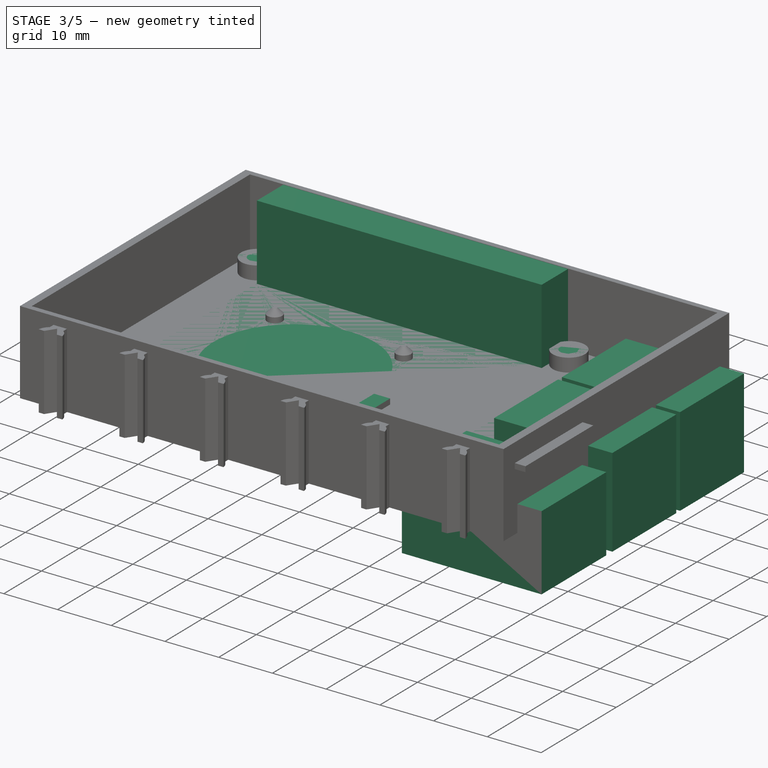
[diagram: stage 3 of 5 — iso view after this stage's code; geometry added in this stage tinted green]
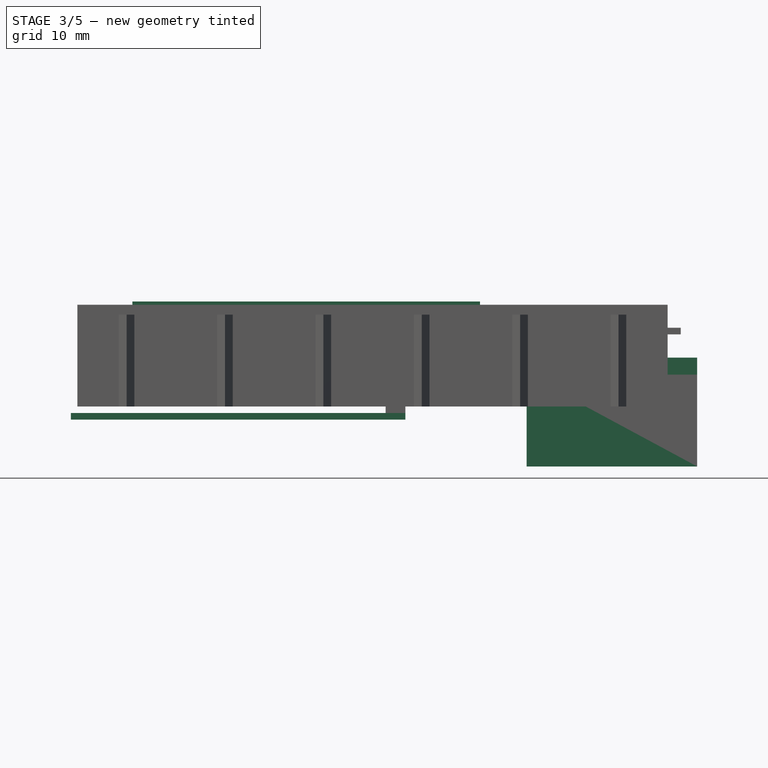
[diagram: stage 3 of 5 — front view after this stage's code; geometry added in this stage tinted green]
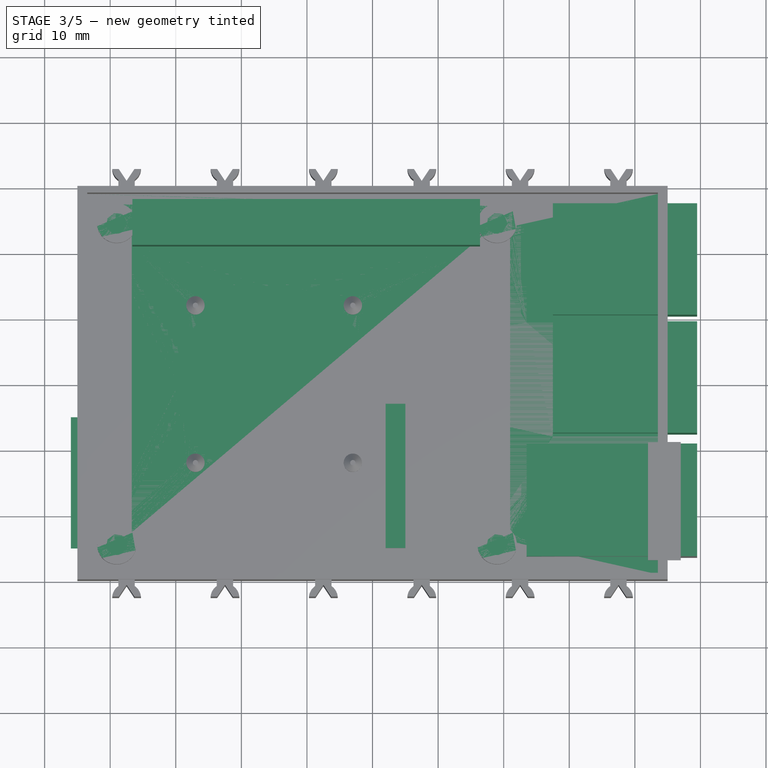
[diagram: stage 3 of 5 — top view after this stage's code; geometry added in this stage tinted green]
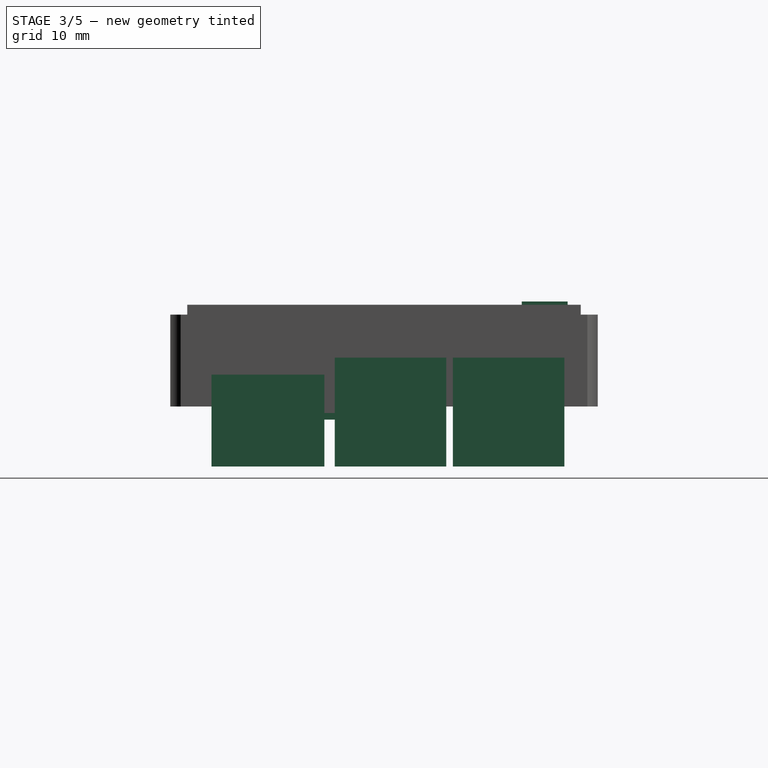
[diagram: stage 3 of 5 — right view after this stage's code; geometry added in this stage tinted green]
FEATURE [Part::Cylinder] Cylinder067  label="Zylinder066"
  Angle = 360
  AttacherType = Attacher::AttachEngine3D
  Height = 2.5
  Placement = pos=(-39,24.5,2) rot=(0,0,1;0rad)
  Radius = 3
FEATURE [Part::Cylinder] Cylinder068  label="Zylinder067"
  Angle = 360
  AttacherType = Attacher::AttachEngine3D
  Height = 4.5
  Placement = pos=(-39,24.5,0) rot=(0,0,1;0rad)
  Radius = 1.6
FEATURE [Part::Box] Box081  label="Würfel054"
  AttacherType = Attacher::AttachEngine3D
  Height = 5
  Length = 3
  Placement = pos=(-5,-27,-1) rot=(0,0,1;0rad)
  Width = 22
FEATURE [Part::Box] Box082  label="Würfel055"
  AttacherType = Attacher::AttachEngine3D
  Height = 1
  Length = 51
  Placement = pos=(-5,-25,-1) rot=(0,0,1;0rad)
  Width = 20
FEATURE [Part::MultiFuse] Fusion093  label="wire channel001"
  Placement = pos=(0,-30,-1) rot=(0,0,1;3.14159rad)
  Shapes = -> [Box082,Box081]
FEATURE [Part::Cylinder] Cylinder069  label="Zylinder068"
  Angle = 360
  AttacherType = Attacher::AttachEngine3D
  Height = 2.5
  Placement = pos=(-39,-24.5,2) rot=(0,0,1;0rad)
  Radius = 3
FEATURE [Part::Cylinder] Cylinder070  label="Zylinder069"
  Angle = 360
  AttacherType = Attacher::AttachEngine3D
  Height = 4.5
  Placement = pos=(-39,-24.5,0) rot=(0,0,1;0rad)
  Radius = 1.6
FEATURE [Sketcher::SketchObject] Sketch028
  MapMode = 5
  Placement = pos=(0,0,0) rot=(1,0,0;3.14159rad)
  sketch-geometry (13):
    g0: GeomPoint [constr] X=-37.5 Y=30 Z=0
    g1: LineSegment StartX=-38.75 StartY=30 StartZ=0 EndX=-36.25 EndY=30 EndZ=0
    g2: LineSegment StartX=-38.75 StartY=30 StartZ=0 EndX=-38.75 EndY=31 EndZ=0
    g3: LineSegment StartX=-36.25 StartY=30 StartZ=0 EndX=-36.25 EndY=31 EndZ=0
    g4: LineSegment [constr] StartX=-38.75 StartY=31 StartZ=0 EndX=-36.25 EndY=31 EndZ=0
    g5: ArcOfCircle CenterX=-37.5 CenterY=32.8104 CenterZ=0 NormalX=0 NormalY=0 NormalZ=1 AngleXU=0 Radius=2.2 StartAngle=3.23737 EndAngle=4.10809
    g6: ArcOfCircle CenterX=-37.5 CenterY=32.8104 CenterZ=0 NormalX=0 NormalY=0 NormalZ=1 AngleXU=0 Radius=2.2 StartAngle=5.31668 EndAngle=6.18741
    g7: LineSegment StartX=-39.6899 StartY=32.6 StartZ=0 EndX=-38.6899 EndY=32.6 EndZ=0
    g8: LineSegment StartX=-35.3101 StartY=32.6 StartZ=0 EndX=-36.3101 EndY=32.6 EndZ=0
    g9: LineSegment [constr] StartX=-38.6899 StartY=32.6 StartZ=0 EndX=-36.3101 EndY=32.6 EndZ=0
    g10: LineSegment StartX=-38.6899 StartY=32.6 StartZ=0 EndX=-37.5 EndY=30.8104 EndZ=0
    g11: LineSegment StartX=-37.5 StartY=30.8104 StartZ=0 EndX=-36.3101 EndY=32.6 EndZ=0
    g12: LineSegment [constr] StartX=-37.5 StartY=32.8104 StartZ=0 EndX=-37.5 EndY=30.8104 EndZ=0
  constraints (33):
    c: DistanceX(g0,g-1) = 37.5
    c: Symmetric(g1,g1,g0)
    c: DistanceX(g1,g1) = 2.5
    c: Vertical(g2)
    c: Vertical(g3)
    c: Coincident(g4,g2)
    c: Coincident(g4,g3)
    c: Coincident(g2,g1)
    c: Coincident(g1,g3)
    c: DistanceY(g1,g3) = 1
    c: Horizontal(g4)
    c: Coincident(g5,g2)
    c: Coincident(g6,g3)
    c: Radius(g5) = 2.2
    c: Equal(g5,g6)
    c: Coincident(g7,g5)
    c: Horizontal(g7)
    c: Coincident(g8,g6)
    c: Horizontal(g8)
    c: DistanceY(g1,g6) = 2.6
    c: DistanceX(g5,g7) = 1
    c: DistanceX(g8,g6) = 1
    c: Coincident(g9,g7)
    c: Coincident(g9,g8)
    c: Horizontal(g9)
    c: Coincident(g6,g5)
    c: Coincident(g10,g7)
    c: Coincident(g11,g8)
    c: Coincident(g10,g11)
    c: Coincident(g12,g5)
    c: Coincident(g12,g10)
    c: Vertical(g12)
    c: DistanceY(g10,g5) = 2
FEATURE [Part::Cylinder] Cylinder071  label="Zylinder070"
  Angle = 360
  AttacherType = Attacher::AttachEngine3D
  Height = 4.5
  Placement = pos=(-39,24.5,0) rot=(0,0,1;0rad)
  Radius = 1.6
FEATURE [Part::Cylinder] Cylinder072  label="Zylinder071"
  Angle = 360
  AttacherType = Attacher::AttachEngine3D
  Height = 1.3
  Radius = 2.9
FEATURE [Part::Chamfer] Chamfer016  label="Ansenkung 005"
  Base = -> Cylinder072
  Edges = 1 edges r=1.29: [Edge1]
  Placement = pos=(-39,24.5,0) rot=(0,0,1;0rad)
FEATURE [Part::Box] Box083  label="Grundkoerper innen001"
  AttacherType = Attacher::AttachEngine3D
  Height = 13.5
  Length = 87
  Placement = pos=(-43.5,-29,2) rot=(0,0,1;0rad)
  Width = 58
FEATURE [Part::Box] Box084  label="GPIO Header001"
  AttacherType = Attacher::AttachEngine3D
  Height = 16
  Length = 53
  Placement = pos=(-36.61,21,0) rot=(0,0,1;0rad)
  Width = 7
FEATURE [Part::Box] Box085  label="Grundkoerper aussen001"
  AttacherType = Attacher::AttachEngine3D
  Height = 15.5
  Length = 90
  Placement = pos=(-45,-30,0) rot=(0,0,1;0rad)
  Width = 60
FEATURE [Part::Cylinder] Cylinder073  label="Zylinder072"
  Angle = 360
  AttacherType = Attacher::AttachEngine3D
  Height = 2.5
  Placement = pos=(-39,-24.5,2) rot=(0,0,1;0rad)
  Radius = 3
FEATURE [Part::Cylinder] Cylinder074  label="Zylinder073"
  Angle = 360
  AttacherType = Attacher::AttachEngine3D
  Height = 2.5
  Placement = pos=(-39,24.5,2) rot=(0,0,1;0rad)
  Radius = 3
FEATURE [Part::MultiFuse] Fusion091
  Shapes = -> [Cylinder073,Cylinder074]
FEATURE [Part::MultiFuse] Fusion095
  Placement = pos=(58,0,0) rot=(0,0,1;0rad)
  Shapes = -> [Cylinder069,Cylinder067]
FEATURE [Part::MultiFuse] Fusion094  label="Stuetzen003"
  Shapes = -> [Fusion091,Fusion095]
FEATURE [Part::MultiFuse] Fusion097
  Shapes = -> [Cylinder070,Cylinder068]
FEATURE [Part::Cylinder] Cylinder075  label="Zylinder074"
  Angle = 360
  AttacherType = Attacher::AttachEngine3D
  Height = 4.5
  Placement = pos=(-39,-24.5,0) rot=(0,0,1;0rad)
  Radius = 1.6
FEATURE [Part::MultiFuse] Fusion090
  Placement = pos=(58,0,0) rot=(0,0,1;0rad)
  Shapes = -> [Cylinder075,Cylinder071]
FEATURE [Part::Cut] Cut038  label="Wanne roh 002"
  Base = -> Box085
  Tool = -> Box083
FEATURE [Part::MultiFuse] Fusion096  label="Wanne roh mit Stuetzen001"
  Shapes = -> [Cut038,Fusion094]
FEATURE [Part::MultiFuse] Fusion098  label="Bohrungen003"
  Shapes = -> [Fusion097,Fusion090]
FEATURE [Part::Box] Box086  label="Network_Pi3"
  AttacherType = Attacher::AttachEngine3D
  Height = 16.6
  Length = 22
  Placement = pos=(27.5,10.5,4.8) rot=(0,0,1;0rad)
  Width = 17
FEATURE [Part::Box] Box087  label="USB_Pi3_2"
  AttacherType = Attacher::AttachEngine3D
  Height = 16.6
  Length = 22
  Placement = pos=(27.5,-7.5,4.8) rot=(0,0,1;0rad)
  Width = 17
FEATURE [Part::Box] Box088  label="USB2_Pi3"
  AttacherType = Attacher::AttachEngine3D
  Height = 14
  Length = 26
  Placement = pos=(23.5,-26.3,4.8) rot=(0,0,1;0rad)
  Width = 17.2
FEATURE [Part::MultiFuse] Fusion099  label="Rear USB & Network slots001"
  Placement = pos=(0,0,-13.95) rot=(0,0,1;0rad)
  Shapes = -> [Box086,Box087,Box088]
FEATURE [Part::MultiFuse] Fusion100  label="Aussparungen 002"
  Shapes = -> [Box084,Fusion098]
FEATURE [Part::Cylinder] Cylinder076  label="Zylinder075"
  Angle = 360
  AttacherType = Attacher::AttachEngine3D
  Height = 1.3
  Radius = 2.9
FEATURE [Part::Chamfer] Chamfer017  label="Ansenkung 006"
  Base = -> Cylinder076
  Edges = 1 edges r=1.29: [Edge1]
  Placement = pos=(19,24.5,0) rot=(0,0,1;0rad)
FEATURE [Part::MultiFuse] Fusion101  label="Ansenkungen Exp-Wanne001"
  Shapes = -> [Chamfer016,Chamfer017]
FEATURE [Part::MultiFuse] Fusion102
  Shapes = -> [Fusion093,Fusion099,Fusion101]
FEATURE [Part::Cylinder] Cylinder078  label="Zylinder077"
  Angle = 360
  AttacherType = Attacher::AttachEngine3D
  Height = 2
  Placement = pos=(-3,12,2) rot=(0,0,1;0rad)
  Radius = 1.4
FEATURE [Part::Chamfer] Chamfer018
  Base = -> Cylinder078
  Edges = 1 edges r=1: [Edge1]
FEATURE [Part::Cylinder] Cylinder079  label="Zylinder078"
  Angle = 360
  AttacherType = Attacher::AttachEngine3D
  Height = 2
  Placement = pos=(-3,12,2) rot=(0,0,1;0rad)
  Radius = 1.4
FEATURE [Part::Chamfer] Chamfer019
  Base = -> Cylinder079
  Edges = 1 edges r=1: [Edge1]
  Placement = pos=(0,-24,0) rot=(0,0,1;0rad)
FEATURE [Part::MultiFuse] Fusion103
  Shapes = -> [Chamfer019,Chamfer018]
FEATURE [Part::Cylinder] Cylinder080  label="Zylinder079"
  Angle = 360
  AttacherType = Attacher::AttachEngine3D
  Height = 2
  Placement = pos=(-3,12,2) rot=(0,0,1;0rad)
  Radius = 1.4
FEATURE [Part::Chamfer] Chamfer020
  Base = -> Cylinder080
  Edges = 1 edges r=1: [Edge1]
  Placement = pos=(0,-24,0) rot=(0,0,1;0rad)
FEATURE [Part::MultiFuse] Fusion104
  Placement = pos=(-24,0,0) rot=(0,0,1;0rad)
  Shapes = -> [Chamfer020,Chamfer021]
FEATURE [Part::MultiFuse] Fusion105
  Shapes = -> [Fusion104,Fusion103]
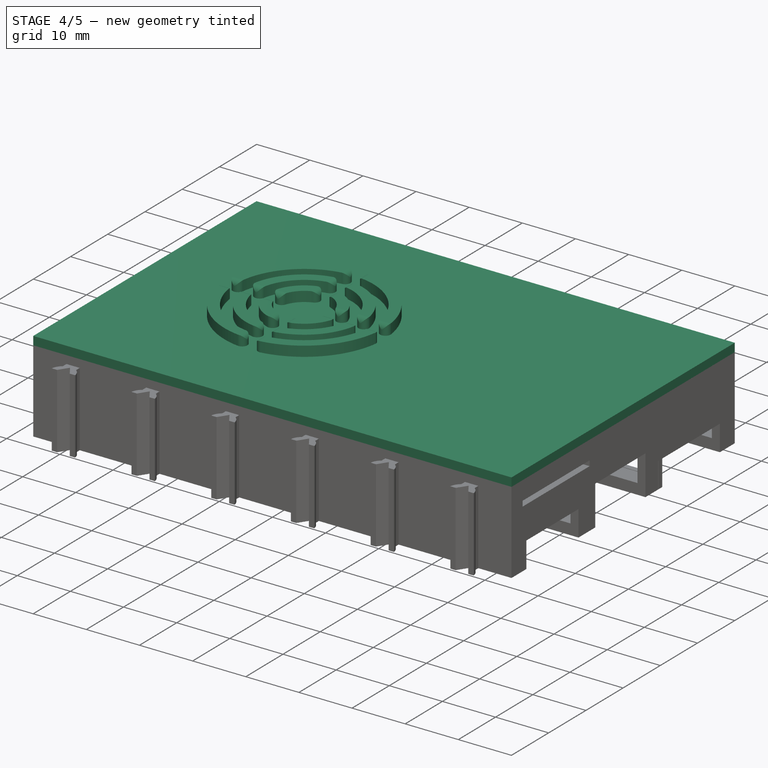
[diagram: stage 4 of 5 — iso view after this stage's code; geometry added in this stage tinted green]
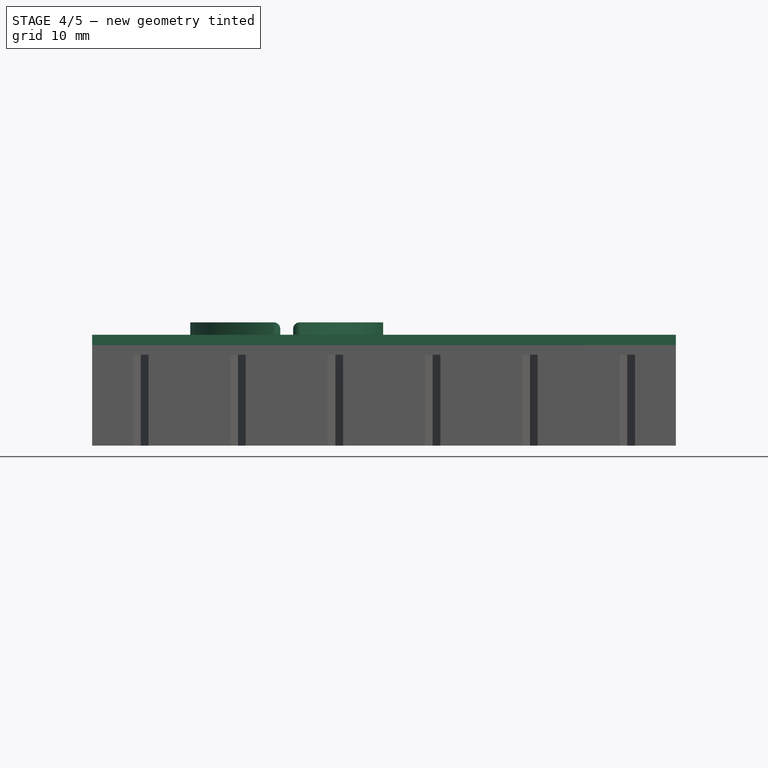
[diagram: stage 4 of 5 — front view after this stage's code; geometry added in this stage tinted green]
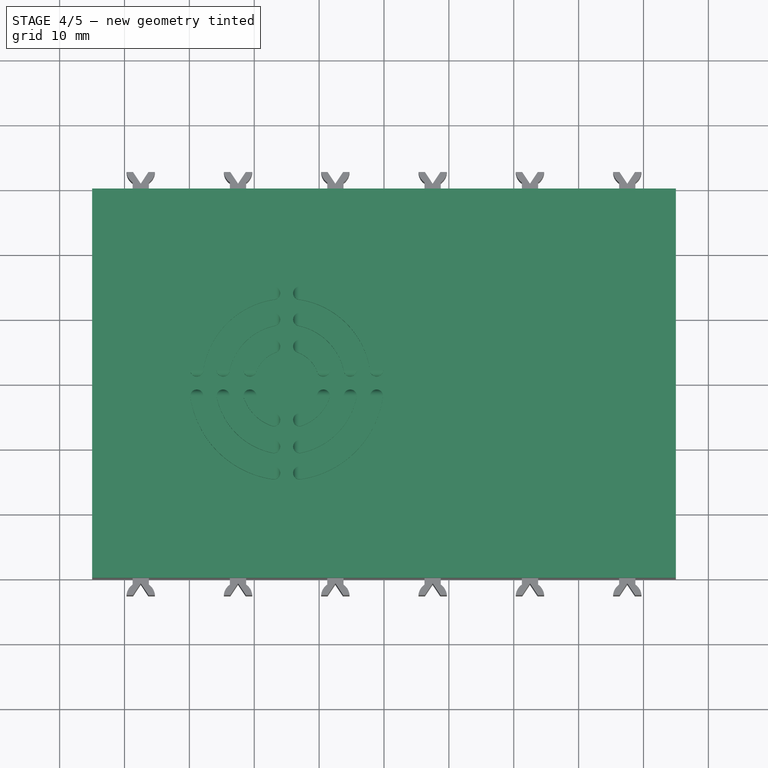
[diagram: stage 4 of 5 — top view after this stage's code; geometry added in this stage tinted green]
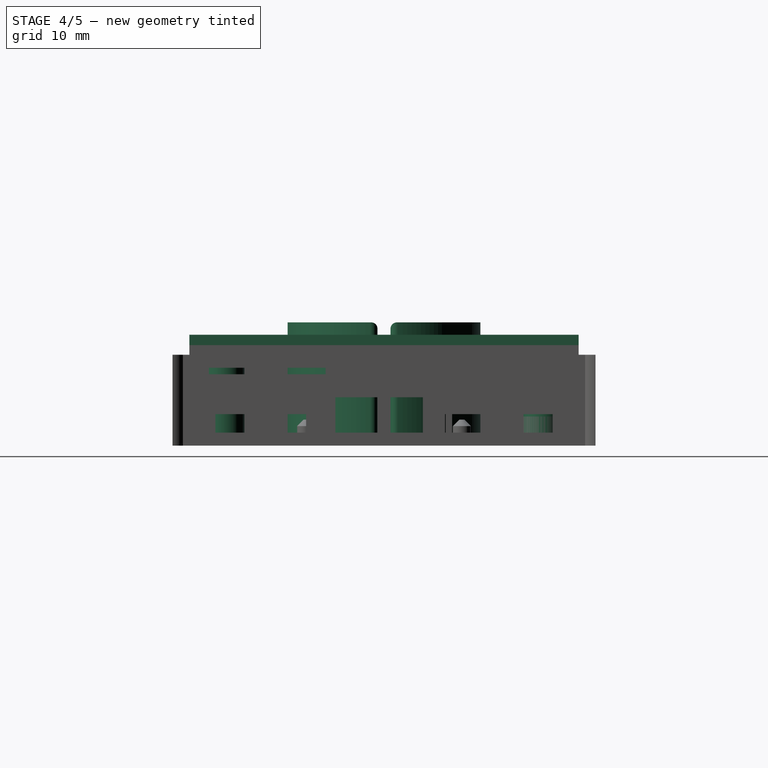
[diagram: stage 4 of 5 — right view after this stage's code; geometry added in this stage tinted green]
FEATURE [Part::Cut] Cut039  label="Wanne geschnitten 002"
  Base = -> Fusion096
  Tool = -> Fusion100
FEATURE [Part::Cylinder] Cylinder077  label="Zylinder076"
  Angle = 360
  AttacherType = Attacher::AttachEngine3D
  Height = 19
  Placement = pos=(-15,0,0) rot=(0,0,1;0rad)
  Radius = 15
FEATURE [Part::Cut] Cut040
  Base = -> Cut039
  Tool = -> Fusion102
FEATURE [Part::Cut] Cut041  label="Wanne ohne Federn001"
  Base = -> Cut040
  Tool = -> Cylinder077
FEATURE [Part::MultiFuse] Fusion106
  Shapes = -> [Cut041,Fusion105]
FEATURE [Part::Chamfer] Chamfer022
  Base = -> Fusion106
  Edges = 2 edges r=1.5: [Edge29,Edge35]
FEATURE [Part::MultiFuse] Fusion109  label="Wanne Pi3"
  Shapes = -> [Chamfer022,Fusion108]
FEATURE [Part::Cylinder] Cylinder082  label="Zylinder081"
  Angle = 360
  AttacherType = Attacher::AttachEngine3D
  Height = 9.5
  Placement = pos=(-39,-24.5,0) rot=(0,0,1;0rad)
  Radius = 1.3
FEATURE [Part::Cylinder] Cylinder084  label="Zylinder083"
  Angle = 360
  AttacherType = Attacher::AttachEngine3D
  Height = 11.1
  Placement = pos=(-39,-24.5,1.8) rot=(0,0,1;0rad)
  Radius = 3
FEATURE [Part::Cylinder] Cylinder085  label="Zylinder084"
  Angle = 360
  AttacherType = Attacher::AttachEngine3D
  Height = 9.5
  Placement = pos=(-39,-24.5,0) rot=(0,0,1;0rad)
  Radius = 1.3
FEATURE [Part::Cylinder] Cylinder086  label="Zylinder085"
  Angle = 360
  AttacherType = Attacher::AttachEngine3D
  Height = 11.1
  Placement = pos=(-39,24.5,1.8) rot=(0,0,1;0rad)
  Radius = 3
FEATURE [Part::Cylinder] Cylinder087  label="Zylinder086"
  Angle = 360
  AttacherType = Attacher::AttachEngine3D
  Height = 9.5
  Placement = pos=(-39,24.5,0) rot=(0,0,1;0rad)
  Radius = 1.3
FEATURE [Part::Cylinder] Cylinder088  label="Zylinder087"
  Angle = 360
  AttacherType = Attacher::AttachEngine3D
  Height = 9.5
  Placement = pos=(-39,24.5,0) rot=(0,0,1;0rad)
  Radius = 1.3
FEATURE [Part::MultiFuse] Fusion114
  Placement = pos=(58,0,0) rot=(0,0,1;0rad)
  Shapes = -> [Cylinder082,Cylinder088]
FEATURE [Part::Cylinder] Cylinder089  label="Zylinder088"
  Angle = 360
  AttacherType = Attacher::AttachEngine3D
  Height = 11.1
  Placement = pos=(-39,24.5,1.8) rot=(0,0,1;0rad)
  Radius = 3
FEATURE [Part::MultiFuse] Fusion117
  Placement = pos=(58,0,0) rot=(0,0,1;0rad)
  Shapes = -> [Cylinder084,Cylinder086]
FEATURE [Part::MultiFuse] Fusion119
  Shapes = -> [Cylinder085,Cylinder087]
FEATURE [Part::MultiFuse] Fusion118  label="Bohrungen004"
  Placement = pos=(0,0,4.2) rot=(0,0,1;0rad)
  Shapes = -> [Fusion119,Fusion114]
FEATURE [Part::Box] Box092  label="Deckel geom.001"
  AttacherType = Attacher::AttachEngine3D
  Height = 1.6
  Length = 90
  Placement = pos=(-45,-30,15.5) rot=(0,0,1;0rad)
  Width = 60
FEATURE [Part::Box] Box093  label="Würfel060"
  AttacherType = Attacher::AttachEngine3D
  Height = 2
  Length = 2
  Placement = pos=(41.3,-28.8,14) rot=(0,0,1;0rad)
  Width = 2
FEATURE [Part::Cylinder] Cylinder095  label="Zylinder094"
  Angle = 360
  AttacherType = Attacher::AttachEngine3D
  Height = 19
  Placement = pos=(-15,0,0) rot=(0,0,1;0rad)
  Radius = 15
FEATURE [Part::Box] Box095  label="Würfel062"
  AttacherType = Attacher::AttachEngine3D
  Height = 2
  Length = 86
  Placement = pos=(-43,-10,14) rot=(0,0,1;0rad)
  Width = 2
FEATURE [Part::Box] Box096  label="Würfel063"
  AttacherType = Attacher::AttachEngine3D
  Height = 2
  Length = 2
  Placement = pos=(-25,-28,14) rot=(0,0,1;0rad)
  Width = 56
FEATURE [Part::Box] Box097  label="Würfel064"
  AttacherType = Attacher::AttachEngine3D
  Height = 2
  Length = 2
  Placement = pos=(-7,-28,14) rot=(0,0,1;0rad)
  Width = 56
FEATURE [Part::Box] Box098  label="Würfel065"
  AttacherType = Attacher::AttachEngine3D
  Height = 2
  Length = 86
  Placement = pos=(-43,8,14) rot=(0,0,1;0rad)
  Width = 2
FEATURE [Part::MultiFuse] Fusion125
  Shapes = -> [Box095,Box096,Box097,Box098]
FEATURE [Part::Cut] Cut044  label="Versteifungen001"
  Base = -> Fusion125
  Tool = -> Cylinder095
FEATURE [Part::Cylinder] Cylinder096  label="Zylinder095"
  Angle = 360
  AttacherType = Attacher::AttachEngine3D
  Height = 19
  Placement = pos=(-15,0,0) rot=(0,0,1;0rad)
  Radius = 15
FEATURE [Part::Cylinder] Cylinder097  label="Zylinder096"
  Angle = 360
  AttacherType = Attacher::AttachEngine3D
  Height = 19
  Placement = pos=(-15,0,0) rot=(0,0,1;0rad)
  Radius = 11
FEATURE [Part::Cylinder] Cylinder098  label="Zylinder097"
  Angle = 360
  AttacherType = Attacher::AttachEngine3D
  Height = 19
  Placement = pos=(-15,0,0) rot=(0,0,1;0rad)
  Radius = 13
FEATURE [Part::Cylinder] Cylinder099  label="Zylinder098"
  Angle = 360
  AttacherType = Attacher::AttachEngine3D
  Height = 19
  Placement = pos=(-15,0,0) rot=(0,0,1;0rad)
  Radius = 9
FEATURE [Part::Cylinder] Cylinder100  label="Zylinder099"
  Angle = 360
  AttacherType = Attacher::AttachEngine3D
  Height = 19
  Placement = pos=(-15,0,0) rot=(0,0,1;0rad)
  Radius = 7
FEATURE [Part::Cylinder] Cylinder101  label="Zylinder100"
  Angle = 360
  AttacherType = Attacher::AttachEngine3D
  Height = 19
  Placement = pos=(-15,0,0) rot=(0,0,1;0rad)
  Radius = 5
FEATURE [Part::Cut] Cut045
  Base = -> Cylinder096
  Tool = -> Cylinder098
FEATURE [Part::Cut] Cut046
  Base = -> Cylinder097
  Tool = -> Cylinder099
FEATURE [Part::Cut] Cut047
  Base = -> Cylinder100
  Tool = -> Cylinder101
FEATURE [Part::Box] Box099  label="Würfel066"
  AttacherType = Attacher::AttachEngine3D
  Height = 19
  Length = 30
  Placement = pos=(-30,-1,0) rot=(0,0,1;0rad)
  Width = 2
FEATURE [Part::Box] Box100  label="Würfel067"
  AttacherType = Attacher::AttachEngine3D
  Height = 19
  Length = 2
  Placement = pos=(-16,-15,0) rot=(0,0,1;0rad)
  Width = 30
FEATURE [Part::MultiFuse] Fusion127
  Shapes = -> [Cut047,Cut045,Cut046]
FEATURE [Part::MultiFuse] Fusion128
  Shapes = -> [Box100,Box099]
FEATURE [Part::Cut] Cut048
  Base = -> Fusion127
  Tool = -> Fusion128
FEATURE [Part::Fillet] Fillet002
  Base = -> Cut048
  Edges = 96 edges r=0.99: [Edge1,Edge3,Edge5,Edge6,Edge7,Edge8,Edge10,Edge11,Edge14,Edge16,Edge17,Edge19,Edge20,Edge21,Edge22,Edge24,Edge25,Edge27,Edge29,Edge30,Edge31,Edge32,Edge34,Edge35,Edge38,Edge40,Edge41,Edge43,Edge44,Edge45,Edge46,Edge48,Edge49,Edge51,Edge53,Edge54,Edge55,Edge56,Edge58,Edge59,Edge62,Edge64,Edge65,+53 more]
FEATURE [Part::Cut] Cut051  label="Wanne Pi3 mit Kamerakabelschlitz"
  Base = -> Fusion109
  Tool = -> Box101
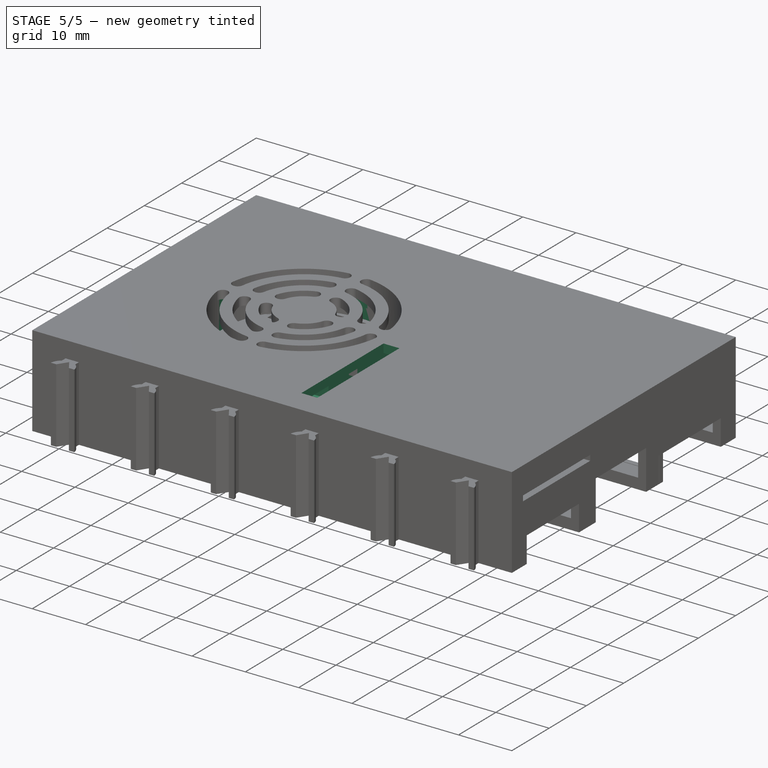
[diagram: stage 5 of 5 — iso view after this stage's code; geometry added in this stage tinted green]
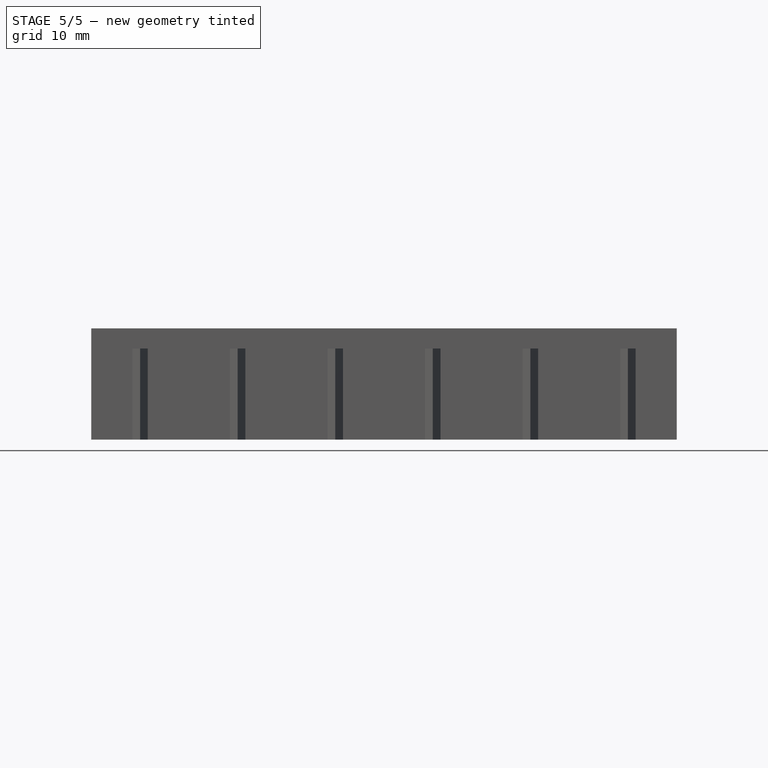
[diagram: stage 5 of 5 — front view after this stage's code; geometry added in this stage tinted green]
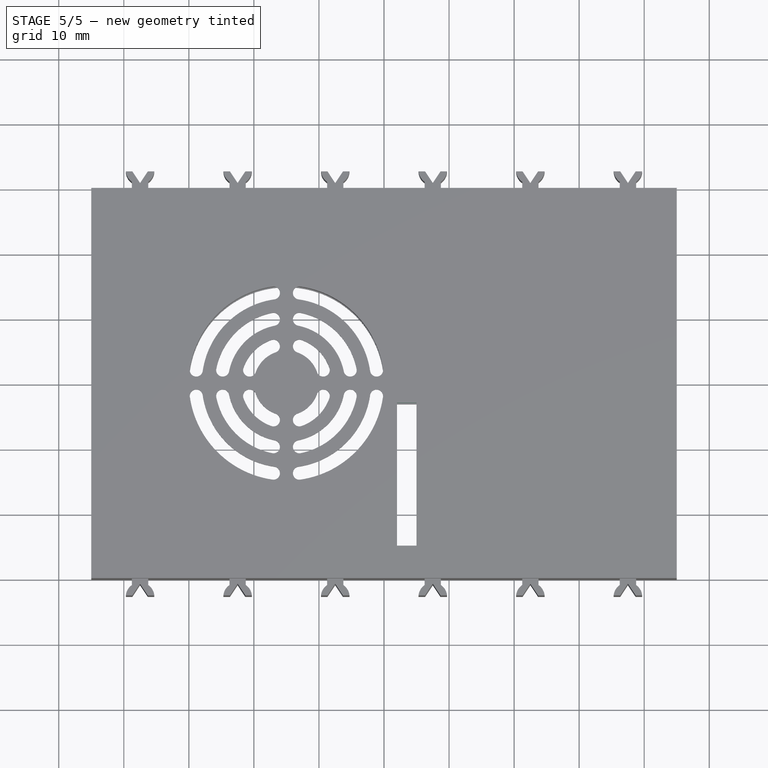
[diagram: stage 5 of 5 — top view after this stage's code; geometry added in this stage tinted green]
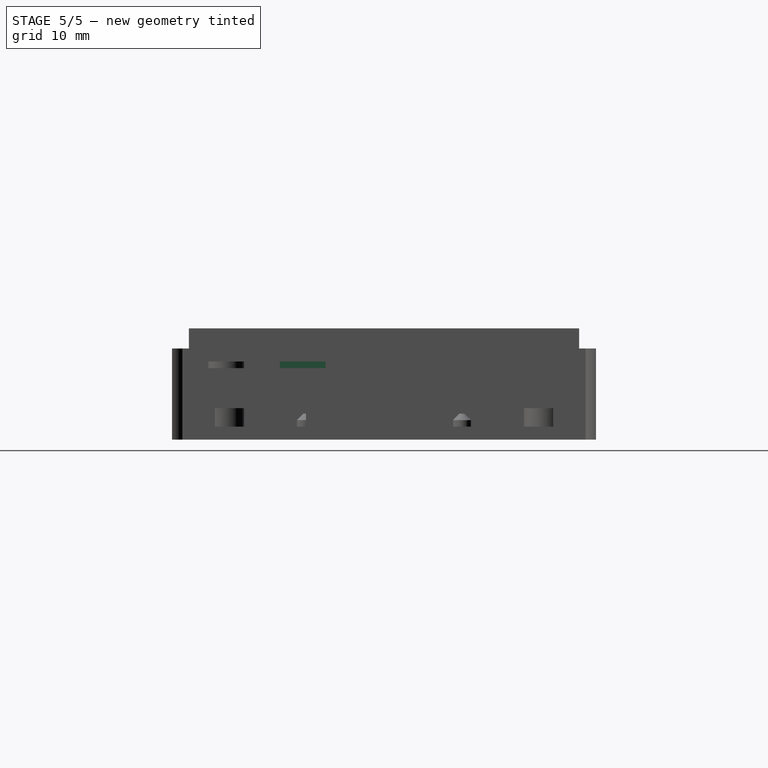
[diagram: stage 5 of 5 — right view after this stage's code; geometry added in this stage tinted green]
FEATURE [Part::Box] Box080  label="Würfel053"
  AttacherType = Attacher::AttachEngine3D
  Height = 2
  Length = 32
  Placement = pos=(-1,-1,0) rot=(0,0,1;0rad)
  Width = 32
FEATURE [Part::Cylinder] Cylinder  label="Zylinder"
  Angle = 360
  AttacherType = Attacher::AttachEngine3D
  Height = 10
  Placement = pos=(15,15,0) rot=(0,0,1;0rad)
  Radius = 15
FEATURE [Part::Cut] Cut036
  Base = -> Box080
  Tool = -> Cylinder
FEATURE [Part::Cylinder] Cylinder063  label="Zylinder062"
  Angle = 360
  AttacherType = Attacher::AttachEngine3D
  Height = 10
  Placement = pos=(3,3,0) rot=(0,0,1;0rad)
  Radius = 1.5
FEATURE [Part::Cylinder] Cylinder064  label="Zylinder063"
  Angle = 360
  AttacherType = Attacher::AttachEngine3D
  Height = 10
  Placement = pos=(27,3,0) rot=(0,0,1;0rad)
  Radius = 1.5
FEATURE [Part::MultiFuse] Fusion087
  Placement = pos=(0,24,0) rot=(0,0,1;0rad)
  Shapes = -> [Cylinder063,Cylinder064]
FEATURE [Part::Cylinder] Cylinder065  label="Zylinder064"
  Angle = 360
  AttacherType = Attacher::AttachEngine3D
  Height = 10
  Placement = pos=(27,3,0) rot=(0,0,1;0rad)
  Radius = 1.5
FEATURE [Part::Cylinder] Cylinder066  label="Zylinder065"
  Angle = 360
  AttacherType = Attacher::AttachEngine3D
  Height = 10
  Placement = pos=(3,3,0) rot=(0,0,1;0rad)
  Radius = 1.5
FEATURE [Part::MultiFuse] Fusion088
  Shapes = -> [Cylinder066,Cylinder065]
FEATURE [Part::MultiFuse] Fusion089
  Shapes = -> [Fusion087,Fusion088]
FEATURE [Part::Cut] Cut037  label="Spacer 2mm"
  Base = -> Cut036
  Placement = pos=(-30,-15,10) rot=(0,0,1;0rad)
  Tool = -> Fusion089
FEATURE [Part::Box] Box  label="Kabelschlitz"
  AttacherType = Attacher::AttachEngine3D
  Height = 10
  Length = 3
  Placement = pos=(2,-25,10) rot=(0,0,1;0rad)
  Width = 22
FEATURE [Part::Box] Box089  label="Würfel057"
  AttacherType = Attacher::AttachEngine3D
  Height = 2
  Length = 2
  Placement = pos=(41.3,26.8,14) rot=(0,0,1;0rad)
  Width = 2
FEATURE [Part::Cylinder] Cylinder083  label="Zylinder082"
  Angle = 360
  AttacherType = Attacher::AttachEngine3D
  Height = 11.1
  Placement = pos=(-39,-24.5,1.8) rot=(0,0,1;0rad)
  Radius = 3
FEATURE [Part::Box] Box090  label="Würfel058"
  AttacherType = Attacher::AttachEngine3D
  Height = 2
  Length = 2
  Placement = pos=(41.3,-28.8,14) rot=(0,0,1;0rad)
  Width = 2
FEATURE [Part::Box] Box091  label="Würfel059"
  AttacherType = Attacher::AttachEngine3D
  Height = 2
  Length = 2
  Placement = pos=(41.3,26.8,14) rot=(0,0,1;0rad)
  Width = 2
FEATURE [Part::MultiFuse] Fusion111
  Shapes = -> [Box091,Box090]
FEATURE [Part::MultiFuse] Fusion112
  Shapes = -> [Cylinder083,Cylinder089]
FEATURE [Part::MultiFuse] Fusion113  label="Stuetzen004"
  Placement = pos=(0,0,2.7) rot=(0,0,1;0rad)
  Shapes = -> [Fusion112,Fusion117]
FEATURE [Part::Cut] Cut042  label="Deckelstützen001"
  Base = -> Fusion113
  Tool = -> Fusion118
FEATURE [Part::MultiFuse] Fusion110  label="Deckel mit Stützen001"
  Shapes = -> [Box092,Cut042]
FEATURE [Part::MultiFuse] Fusion116
  Placement = pos=(-84.6,0,0) rot=(0,0,1;0rad)
  Shapes = -> [Box089,Box093]
FEATURE [Part::MultiFuse] Fusion115
  Shapes = -> [Fusion111,Fusion116]
FEATURE [Part::Chamfer] Chamfer023  label="Zentrierer001"
  Base = -> Fusion115
  Edges = 8 edges r=0.6: [Edge6,Edge12,Edge18,Edge22,Edge26,Edge36,Edge38,Edge46]
  Placement = pos=(0,0,29.5) rot=(1,0,0;3.14159rad)
FEATURE [Part::Cylinder] Cylinder090  label="Zylinder089"
  Angle = 360
  AttacherType = Attacher::AttachEngine3D
  Height = 19
  Placement = pos=(-15,0,0) rot=(0,0,1;0rad)
  Radius = 15
FEATURE [Part::Cylinder] Cylinder091  label="Zylinder090"
  Angle = 360
  AttacherType = Attacher::AttachEngine3D
  Height = 2
  Placement = pos=(-3,12,2) rot=(0,0,1;0rad)
  Radius = 1.4
FEATURE [Part::Chamfer] Chamfer024
  Base = -> Cylinder091
  Edges = 1 edges r=1: [Edge1]
  Placement = pos=(0,-24,0) rot=(0,0,1;0rad)
FEATURE [Part::Cylinder] Cylinder092  label="Zylinder091"
  Angle = 360
  AttacherType = Attacher::AttachEngine3D
  Height = 2
  Placement = pos=(-3,12,2) rot=(0,0,1;0rad)
  Radius = 1.4
FEATURE [Part::Chamfer] Chamfer026
  Base = -> Cylinder092
  Edges = 1 edges r=1: [Edge1]
  Placement = pos=(0,-24,0) rot=(0,0,1;0rad)
FEATURE [Part::Cylinder] Cylinder093  label="Zylinder092"
  Angle = 360
  AttacherType = Attacher::AttachEngine3D
  Height = 2
  Placement = pos=(-3,12,2) rot=(0,0,1;0rad)
  Radius = 1.4
FEATURE [Part::Chamfer] Chamfer025
  Base = -> Cylinder093
  Edges = 1 edges r=1: [Edge1]
FEATURE [Part::Cylinder] Cylinder094  label="Zylinder093"
  Angle = 360
  AttacherType = Attacher::AttachEngine3D
  Height = 2
  Placement = pos=(-3,12,2) rot=(0,0,1;0rad)
  Radius = 1.4
FEATURE [Part::Chamfer] Chamfer027
  Base = -> Cylinder094
  Edges = 1 edges r=1: [Edge1]
FEATURE [Part::MultiFuse] Fusion121
  Shapes = -> [Chamfer026,Chamfer027]
FEATURE [Part::MultiFuse] Fusion122
  Placement = pos=(-24,0,0) rot=(0,0,1;0rad)
  Shapes = -> [Chamfer024,Chamfer025]
FEATURE [Part::MultiFuse] Fusion120
  Placement = pos=(-30,0,14) rot=(0,1,0;3.14159rad)
  Shapes = -> [Fusion122,Fusion121]
FEATURE [Part::Box] Box094  label="Würfel061"
  AttacherType = Attacher::AttachEngine3D
  Height = 3.5
  Length = 30.8
  Placement = pos=(-30.4,-15.4,12) rot=(0,0,1;0rad)
  Width = 30.8
FEATURE [Part::Cut] Cut043
  Base = -> Box094
  Tool = -> Cylinder090
FEATURE [Part::MultiFuse] Fusion123  label="Luefterzarge001"
  Shapes = -> [Fusion120,Cut043]
FEATURE [Part::MultiFuse] Fusion124  label="Deckel roh002"
  Shapes = -> [Fusion110,Chamfer023]
FEATURE [Part::MultiFuse] Fusion126  label="Deckel mit Zarge001"
  Shapes = -> [Fusion123,Fusion124,Cut044]
FEATURE [Part::Cut] Cut049  label="Deckel"
  Base = -> Fusion126
  Tool = -> Fillet002
FEATURE [Part::Cut] Cut050  label="Deckel mit Schlitz"
  Base = -> Cut049
  Tool = -> Box
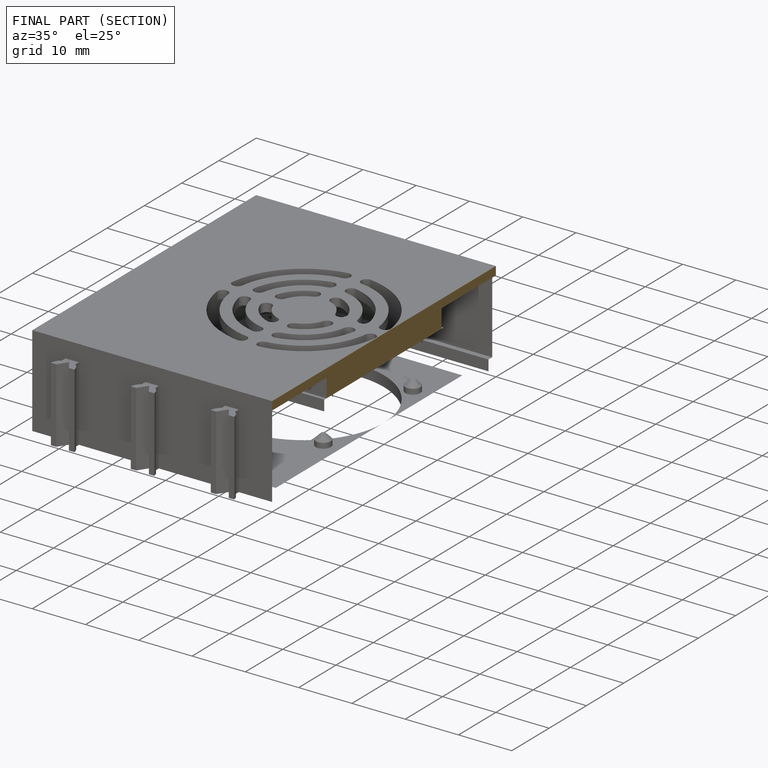
[diagram: finished part — half-section view (interior)]
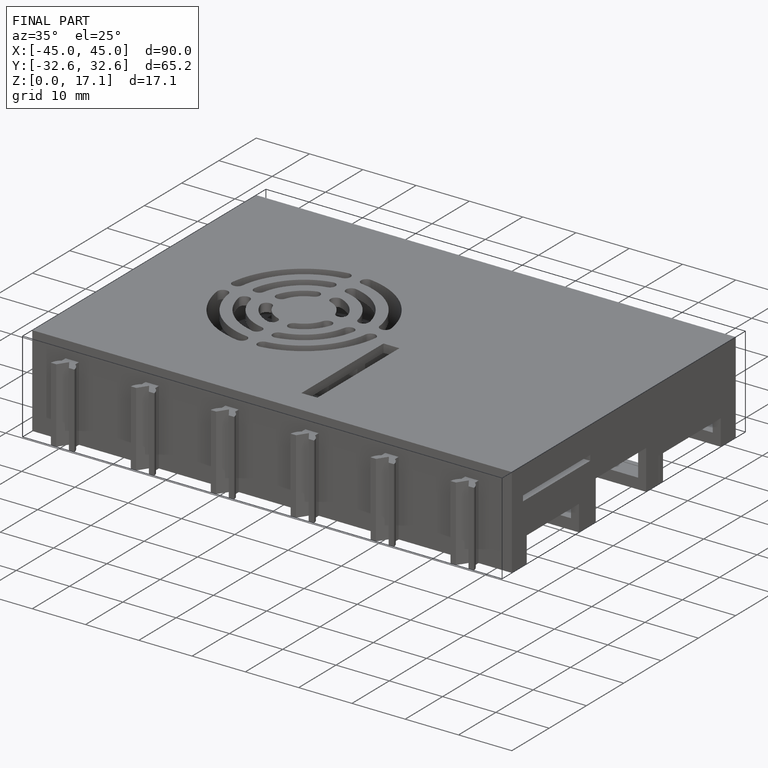
[diagram: finished part — iso view with bounding-box wireframe]
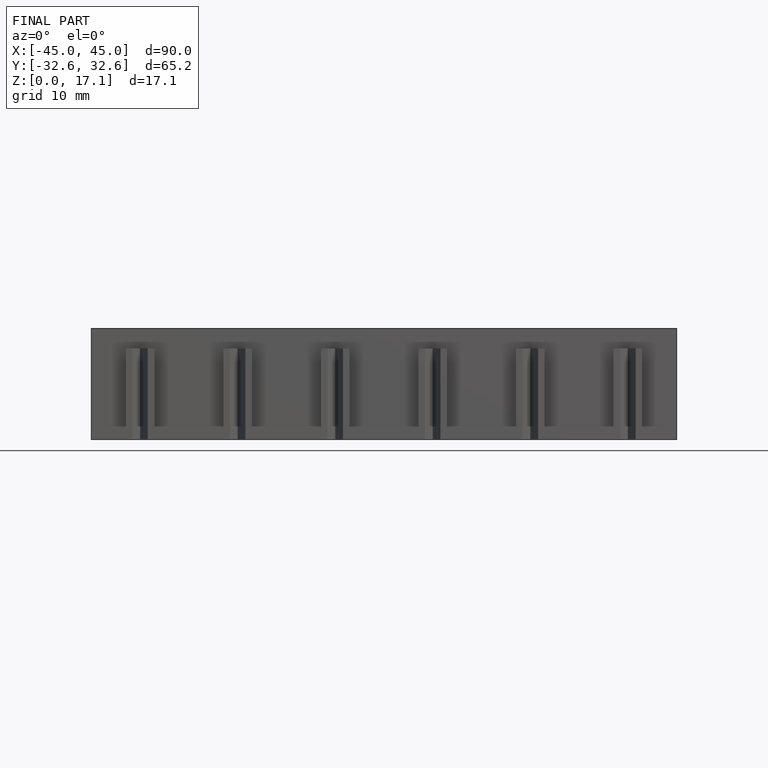
[diagram: finished part — front view with bounding-box wireframe]
